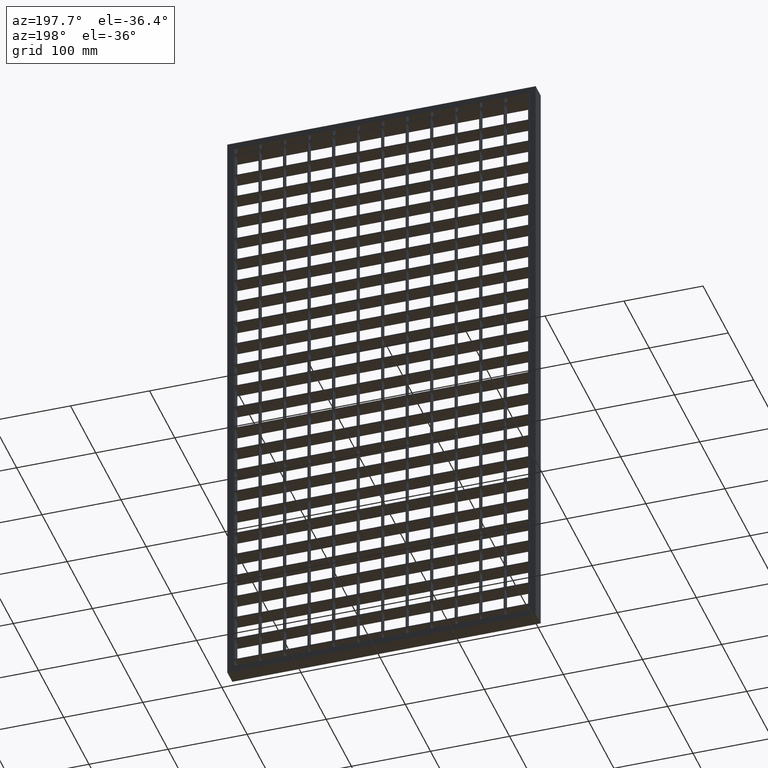
[diagram: clean part render]
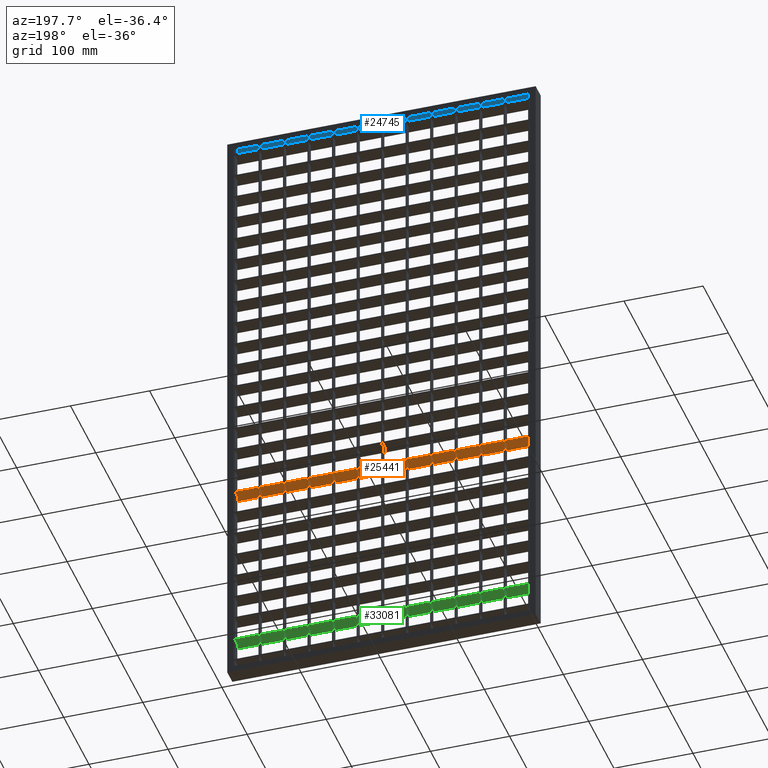
[diagram: same view with three faces highlighted in distinct colors, each labeled with its STEP entity id]
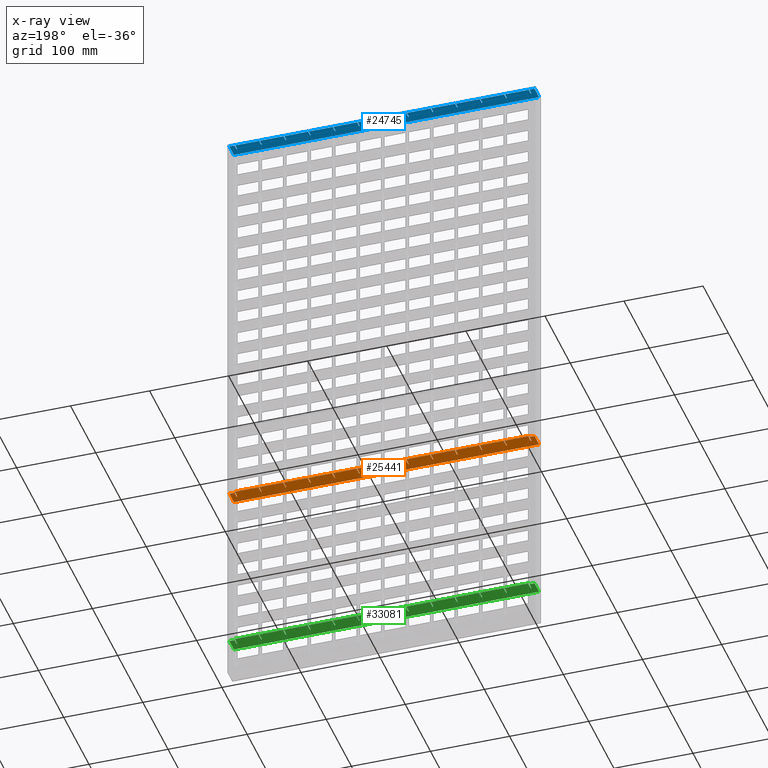
[diagram: x-ray of the same camera — body ghosted, the three highlighted faces saturated]
A machine part, auxiliary view with three faces highlighted in distinct colors.
The next image is the same camera in x-ray (body ghosted, the three faces saturated) — at least one of them is partly hidden behind the body in this view.
Their STEP definitions:

[orange] entity #25441 — the highlighted planar face has unit normal (0, 0, 1).
#48 = DIRECTION ( 'NONE',  ( 0.0000000000000000000, -1.000000000000000000, 0.0000000000000000000 ) ) ;
#71 = EDGE_CURVE ( 'NONE', #43495, #48874, #5362, .T. ) ;
#232 = CARTESIAN_POINT ( 'NONE',  ( 71.50000000000001400, 10.00000000000000200, -521.7499999999997700 ) ) ;
#266 = CARTESIAN_POINT ( 'NONE',  ( 382.0000000000002800, 10.00000000000000400, -521.7499999999998900 ) ) ;
#476 = LINE ( 'NONE', #37207, #14218 ) ;
#546 = DIRECTION ( 'NONE',  ( 0.0000000000000000000, -1.000000000000000000, 0.0000000000000000000 ) ) ;
#792 = LINE ( 'NONE', #11099, #41834 ) ;
#819 = CARTESIAN_POINT ( 'NONE',  ( 408.0561711201315200, 7.632783294297951200E-014, -521.7499999999997700 ) ) ;
#833 = ORIENTED_EDGE ( 'NONE', *, *, #42101, .T. ) ;
#947 = DIRECTION ( 'NONE',  ( 1.000000000000000000, 3.061616997868380700E-016, -0.0000000000000000000 ) ) ;
#949 = VERTEX_POINT ( 'NONE', #30416 ) ;
#966 = CARTESIAN_POINT ( 'NONE',  ( 70.50000000000000000, 10.00000000000002000, -521.7499999999997700 ) ) ;
#1165 = VECTOR ( 'NONE', #11774, 1000.000000000000000 ) ;
#1413 = VECTOR ( 'NONE', #13258, 1000.000000000000000 ) ;
#1476 = CARTESIAN_POINT ( 'NONE',  ( 408.0561711201315200, 10.00000000000012300, -521.7499999999997700 ) ) ;
#1567 = LINE ( 'NONE', #51334, #19608 ) ;
#1660 = LINE ( 'NONE', #21283, #48918 ) ;
#1673 = CARTESIAN_POINT ( 'NONE',  ( 39.50000000000000700, 7.001226303889211900E-016, -521.7499999999997700 ) ) ;
#1858 = EDGE_CURVE ( 'NONE', #5695, #18092, #46060, .T. ) ;
#1867 = VECTOR ( 'NONE', #36071, 1000.000000000000000 ) ;
#1905 = CARTESIAN_POINT ( 'NONE',  ( 318.5000000000001100, 10.00000000000000200, -521.7499999999998900 ) ) ;
#1991 = CARTESIAN_POINT ( 'NONE',  ( 164.5000000000000000, 1.006284330175759700E-015, -521.7499999999997700 ) ) ;
#2196 = LINE ( 'NONE', #38867, #44454 ) ;
#2298 = LINE ( 'NONE', #11799, #45215 ) ;
#2588 = CARTESIAN_POINT ( 'NONE',  ( 133.5000000000000000, -9.999999999999877400, -521.7499999999997700 ) ) ;
#2824 = VERTEX_POINT ( 'NONE', #8388 ) ;
#2851 = VERTEX_POINT ( 'NONE', #16398 ) ;
#3014 = EDGE_CURVE ( 'NONE', #26338, #17902, #40969, .T. ) ;
#3029 = VERTEX_POINT ( 'NONE', #17264 ) ;
#3041 = ORIENTED_EDGE ( 'NONE', *, *, #30598, .F. ) ;
#3050 = VERTEX_POINT ( 'NONE', #21444 ) ;
#3082 = CARTESIAN_POINT ( 'NONE',  ( 225.5000000000001100, 0.0000000000000000000, -521.7499999999997700 ) ) ;
#3092 = VERTEX_POINT ( 'NONE', #6107 ) ;
#3591 = VERTEX_POINT ( 'NONE', #18608 ) ;
#3615 = DIRECTION ( 'NONE',  ( -0.0000000000000000000, 1.000000000000000000, 0.0000000000000000000 ) ) ;
#3698 = CARTESIAN_POINT ( 'NONE',  ( 349.5000000000001700, 10.00000000000000200, -521.7499999999998900 ) ) ;
#3738 = CARTESIAN_POINT ( 'NONE',  ( 40.50000000000000700, 10.00000000000000200, -521.7499999999997700 ) ) ;
#3892 = LINE ( 'NONE', #28332, #13859 ) ;
#3942 = DIRECTION ( 'NONE',  ( -0.0000000000000000000, 1.000000000000000000, 0.0000000000000000000 ) ) ;
#3990 = CARTESIAN_POINT ( 'NONE',  ( 195.5000000000000000, 10.00000000000000200, -521.7499999999997700 ) ) ;
#4242 = CARTESIAN_POINT ( 'NONE',  ( 408.0561711201315200, 10.00000000000012300, -521.7499999999997700 ) ) ;
#4399 = CARTESIAN_POINT ( 'NONE',  ( 408.0561711201315200, 1.231653667943533000E-013, -521.7499999999997700 ) ) ;
#4421 = EDGE_CURVE ( 'NONE', #7602, #49210, #38949, .T. ) ;
#4432 = CARTESIAN_POINT ( 'NONE',  ( 408.0561711201315200, 1.144917494144692700E-013, -521.7499999999997700 ) ) ;
#4444 = LINE ( 'NONE', #45253, #10735 ) ;
#4483 = CARTESIAN_POINT ( 'NONE',  ( 408.0561711201315200, 10.00000000000012300, -521.7499999999997700 ) ) ;
#4532 = EDGE_CURVE ( 'NONE', #38721, #38531, #45807, .T. ) ;
#4675 = DIRECTION ( 'NONE',  ( 0.0000000000000000000, -1.000000000000000000, 0.0000000000000000000 ) ) ;
#4892 = CARTESIAN_POINT ( 'NONE',  ( 257.5000000000001100, 10.00000000000007600, -521.7499999999997700 ) ) ;
#5091 = ORIENTED_EDGE ( 'NONE', *, *, #45485, .F. ) ;
#5362 = LINE ( 'NONE', #51163, #20281 ) ;
#5481 = ORIENTED_EDGE ( 'NONE', *, *, #7026, .F. ) ;
#5522 = DIRECTION ( 'NONE',  ( 1.000000000000000000, 3.061616997868380700E-016, -0.0000000000000000000 ) ) ;
#5559 = CARTESIAN_POINT ( 'NONE',  ( 408.0561711201315200, 10.00000000000012300, -521.7499999999997700 ) ) ;
#5632 = VERTEX_POINT ( 'NONE', #16858 ) ;
#5695 = VERTEX_POINT ( 'NONE', #28284 ) ;
#5740 = DIRECTION ( 'NONE',  ( 0.0000000000000000000, -1.000000000000000000, 0.0000000000000000000 ) ) ;
#5875 = DIRECTION ( 'NONE',  ( -1.000000000000000000, 3.061616997868380700E-016, 0.0000000000000000000 ) ) ;
#6057 = VECTOR ( 'NONE', #7014, 1000.000000000000000 ) ;
#6107 = CARTESIAN_POINT ( 'NONE',  ( 133.5000000000000000, 10.00000000000000200, -521.7499999999997700 ) ) ;
#6189 = DIRECTION ( 'NONE',  ( -1.000000000000000000, -3.061616997868383100E-016, 0.0000000000000000000 ) ) ;
#6340 = LINE ( 'NONE', #43366, #29340 ) ;
#6582 = CARTESIAN_POINT ( 'NONE',  ( 388.0000000000000600, 8.000000000000001800, -521.7499999999998900 ) ) ;
#6753 = EDGE_CURVE ( 'NONE', #37059, #37531, #40591, .T. ) ;
#6828 = LINE ( 'NONE', #35457, #48500 ) ;
#6973 = CARTESIAN_POINT ( 'NONE',  ( 101.4999999999999900, -9.999999999999877400, -521.7499999999997700 ) ) ;
#7014 = DIRECTION ( 'NONE',  ( -0.0000000000000000000, 1.000000000000000000, 0.0000000000000000000 ) ) ;
#7026 = EDGE_CURVE ( 'NONE', #31857, #32474, #42416, .T. ) ;
#7067 = ORIENTED_EDGE ( 'NONE', *, *, #48137, .F. ) ;
#7184 = EDGE_CURVE ( 'NONE', #10729, #5695, #6340, .T. ) ;
#7187 = CARTESIAN_POINT ( 'NONE',  ( 380.5000000000000600, -9.999999999999877400, -521.7499999999997700 ) ) ;
#7397 = CARTESIAN_POINT ( 'NONE',  ( 408.0561711201315200, 10.00000000000012300, -521.7499999999997700 ) ) ;
#7578 = VERTEX_POINT ( 'NONE', #15153 ) ;
#7602 = VERTEX_POINT ( 'NONE', #7661 ) ;
#7606 = DIRECTION ( 'NONE',  ( -1.000000000000000000, 3.061616997868380700E-016, 0.0000000000000000000 ) ) ;
#7661 = CARTESIAN_POINT ( 'NONE',  ( 132.5000000000000000, 7.001226303889211900E-016, -521.7499999999997700 ) ) ;
#7877 = CARTESIAN_POINT ( 'NONE',  ( 9.500000000000008900, 10.00000000000000200, -521.7499999999997700 ) ) ;
#7927 = CARTESIAN_POINT ( 'NONE',  ( 8.500000000000007100, 7.001226303889211900E-016, -521.7499999999997700 ) ) ;
#8292 = CARTESIAN_POINT ( 'NONE',  ( 256.5000000000001100, -9.999999999999877400, -521.7499999999997700 ) ) ;
#8388 = CARTESIAN_POINT ( 'NONE',  ( 319.5000000000001100, 10.00000000000009600, -521.7499999999997700 ) ) ;
#8409 = CARTESIAN_POINT ( 'NONE',  ( 194.5000000000000000, -9.999999999999877400, -521.7499999999997700 ) ) ;
#8526 = VECTOR ( 'NONE', #5875, 1000.000000000000000 ) ;
#8679 = CARTESIAN_POINT ( 'NONE',  ( 7.999999999999996400, 8.000000000000001800, -521.7499999999997700 ) ) ;
#8794 = DIRECTION ( 'NONE',  ( 1.000000000000000000, 3.061616997868380700E-016, -0.0000000000000000000 ) ) ;
#9042 = LINE ( 'NONE', #1476, #46310 ) ;
#9071 = LINE ( 'NONE', #10747, #14668 ) ;
#9133 = LINE ( 'NONE', #49332, #17284 ) ;
#9241 = CARTESIAN_POINT ( 'NONE',  ( 195.5000000000000000, 1.006284330175759700E-015, -521.7499999999997700 ) ) ;
#9303 = CARTESIAN_POINT ( 'NONE',  ( 408.0561711201315200, 1.040834085586084300E-013, -521.7499999999997700 ) ) ;
#9529 = LINE ( 'NONE', #6973, #17011 ) ;
#9680 = DIRECTION ( 'NONE',  ( -1.000000000000000000, 3.061616997868380700E-016, 0.0000000000000000000 ) ) ;
#9738 = VERTEX_POINT ( 'NONE', #47893 ) ;
#9917 = DIRECTION ( 'NONE',  ( -0.0000000000000000000, 1.000000000000000000, 0.0000000000000000000 ) ) ;
#9958 = ORIENTED_EDGE ( 'NONE', *, *, #1858, .T. ) ;
#10020 = DIRECTION ( 'NONE',  ( -1.000000000000000000, 3.061616997868380700E-016, 0.0000000000000000000 ) ) ;
#10054 = EDGE_CURVE ( 'NONE', #26887, #32355, #30296, .T. ) ;
#10467 = VERTEX_POINT ( 'NONE', #28356 ) ;
#10544 = DIRECTION ( 'NONE',  ( -1.000000000000000000, -3.061616997868383100E-016, 0.0000000000000000000 ) ) ;
#10574 = CARTESIAN_POINT ( 'NONE',  ( 9.500000000000008900, 1.006284330175759700E-015, -521.7499999999997700 ) ) ;
#10584 = DIRECTION ( 'NONE',  ( 0.0000000000000000000, -1.000000000000000000, 0.0000000000000000000 ) ) ;
#10729 = VERTEX_POINT ( 'NONE', #34217 ) ;
#10734 = ORIENTED_EDGE ( 'NONE', *, *, #41175, .T. ) ;
#10735 = VECTOR ( 'NONE', #29599, 1000.000000000000000 ) ;
#10747 = CARTESIAN_POINT ( 'NONE',  ( 70.50000000000000000, -9.999999999999877400, -521.7499999999997700 ) ) ;
#10903 = EDGE_CURVE ( 'NONE', #28117, #22506, #46997, .T. ) ;
#10959 = DIRECTION ( 'NONE',  ( 0.0000000000000000000, 1.000000000000000000, -0.0000000000000000000 ) ) ;
#11099 = CARTESIAN_POINT ( 'NONE',  ( 408.0561711201315200, 10.00000000000012300, -521.7499999999997700 ) ) ;
#11176 = CARTESIAN_POINT ( 'NONE',  ( 7.999999999999996400, 8.000000000000001800, -521.7499999999997700 ) ) ;
#11197 = DIRECTION ( 'NONE',  ( -1.000000000000000000, -3.061616997868383100E-016, 0.0000000000000000000 ) ) ;
#11338 = VECTOR ( 'NONE', #35824, 1000.000000000000000 ) ;
#11371 = EDGE_CURVE ( 'NONE', #5632, #12950, #2196, .T. ) ;
#11451 = DIRECTION ( 'NONE',  ( -1.000000000000000000, -3.061616997868383100E-016, 0.0000000000000000000 ) ) ;
#11635 = VECTOR ( 'NONE', #5740, 1000.000000000000000 ) ;
#11768 = DIRECTION ( 'NONE',  ( -0.0000000000000000000, 1.000000000000000000, 0.0000000000000000000 ) ) ;
#11774 = DIRECTION ( 'NONE',  ( 0.0000000000000000000, -1.000000000000000000, 0.0000000000000000000 ) ) ;
#11799 = CARTESIAN_POINT ( 'NONE',  ( 408.0561711201315200, 10.00000000000012300, -521.7499999999997700 ) ) ;
#12108 = VERTEX_POINT ( 'NONE', #46812 ) ;
#12193 = CARTESIAN_POINT ( 'NONE',  ( 132.5000000000000000, -9.999999999999877400, -521.7499999999997700 ) ) ;
#12198 = EDGE_CURVE ( 'NONE', #36038, #25391, #42620, .T. ) ;
#12259 = VECTOR ( 'NONE', #29052, 1000.000000000000000 ) ;
#12266 = EDGE_CURVE ( 'NONE', #23702, #12108, #20639, .T. ) ;
#12490 = VERTEX_POINT ( 'NONE', #3082 ) ;
#12521 = CARTESIAN_POINT ( 'NONE',  ( 40.50000000000000700, 1.006284330175759700E-015, -521.7499999999997700 ) ) ;
#12946 = DIRECTION ( 'NONE',  ( -1.000000000000000000, -3.061616997868383100E-016, 0.0000000000000000000 ) ) ;
#12950 = VERTEX_POINT ( 'NONE', #1673 ) ;
#12970 = DIRECTION ( 'NONE',  ( -0.0000000000000000000, 1.000000000000000000, 0.0000000000000000000 ) ) ;
#13072 = CARTESIAN_POINT ( 'NONE',  ( 2.000000000000003600, 8.000000000000001800, -521.7499999999997700 ) ) ;
#13108 = VECTOR ( 'NONE', #10020, 1000.000000000000000 ) ;
#13175 = EDGE_CURVE ( 'NONE', #12108, #26338, #6828, .T. ) ;
#13191 = EDGE_CURVE ( 'NONE', #2824, #26752, #19895, .T. ) ;
#13258 = DIRECTION ( 'NONE',  ( -0.0000000000000000000, 1.000000000000000000, 0.0000000000000000000 ) ) ;
#13263 = VERTEX_POINT ( 'NONE', #35292 ) ;
#13330 = CARTESIAN_POINT ( 'NONE',  ( 102.5000000000000100, 10.00000000000000200, -521.7499999999997700 ) ) ;
#13373 = VECTOR ( 'NONE', #8794, 1000.000000000000000 ) ;
#13437 = CARTESIAN_POINT ( 'NONE',  ( 256.5000000000001100, 10.00000000000000200, -521.7499999999998900 ) ) ;
#13510 = VECTOR ( 'NONE', #45218, 1000.000000000000000 ) ;
#13608 = VERTEX_POINT ( 'NONE', #6582 ) ;
#13621 = EDGE_CURVE ( 'NONE', #13608, #7578, #26079, .T. ) ;
#13672 = FACE_OUTER_BOUND ( 'NONE', #47451, .T. ) ;
#13859 = VECTOR ( 'NONE', #546, 1000.000000000000000 ) ;
#14218 = VECTOR ( 'NONE', #12970, 1000.000000000000000 ) ;
#14410 = EDGE_CURVE ( 'NONE', #19671, #3591, #49622, .T. ) ;
#14562 = ORIENTED_EDGE ( 'NONE', *, *, #23707, .F. ) ;
#14668 = VECTOR ( 'NONE', #10584, 1000.000000000000000 ) ;
#14956 = CARTESIAN_POINT ( 'NONE',  ( 408.0561711201315200, -4.510281037539698400E-014, -521.7499999999997700 ) ) ;
#15152 = EDGE_CURVE ( 'NONE', #46882, #42861, #24113, .T. ) ;
#15153 = CARTESIAN_POINT ( 'NONE',  ( 388.0000000000000600, -10.00000000000000000, -521.7500000000000000 ) ) ;
#15180 = VERTEX_POINT ( 'NONE', #1905 ) ;
#15243 = CARTESIAN_POINT ( 'NONE',  ( 71.50000000000001400, -9.999999999999877400, -521.7499999999997700 ) ) ;
#15377 = VERTEX_POINT ( 'NONE', #232 ) ;
#15436 = EDGE_CURVE ( 'NONE', #32355, #43222, #45781, .T. ) ;
#15445 = EDGE_CURVE ( 'NONE', #17286, #2824, #1660, .T. ) ;
#15515 = EDGE_CURVE ( 'NONE', #47786, #36038, #47672, .T. ) ;
#15559 = DIRECTION ( 'NONE',  ( -1.000000000000000000, 3.061616997868380700E-016, 0.0000000000000000000 ) ) ;
#15706 = DIRECTION ( 'NONE',  ( 1.000000000000000000, 3.061616997868380700E-016, -0.0000000000000000000 ) ) ;
#15716 = VERTEX_POINT ( 'NONE', #34222 ) ;
#15956 = VECTOR ( 'NONE', #18947, 1000.000000000000000 ) ;
#16185 = DIRECTION ( 'NONE',  ( 0.0000000000000000000, -1.000000000000000000, 0.0000000000000000000 ) ) ;
#16398 = CARTESIAN_POINT ( 'NONE',  ( 318.5000000000001100, 0.0000000000000000000, -521.7499999999997700 ) ) ;
#16764 = CARTESIAN_POINT ( 'NONE',  ( 102.4999999999999900, -9.999999999999877400, -521.7499999999997700 ) ) ;
#16785 = ORIENTED_EDGE ( 'NONE', *, *, #25407, .F. ) ;
#16858 = CARTESIAN_POINT ( 'NONE',  ( 39.49999999999997900, 10.00000000000001100, -521.7499999999997700 ) ) ;
#16904 = CARTESIAN_POINT ( 'NONE',  ( 9.500000000000008900, -9.999999999999877400, -521.7499999999997700 ) ) ;
#16933 = CARTESIAN_POINT ( 'NONE',  ( 8.500000000000007100, -9.999999999999877400, -521.7499999999997700 ) ) ;
#16961 = DIRECTION ( 'NONE',  ( -1.000000000000000000, -3.061616997868383100E-016, 0.0000000000000000000 ) ) ;
#17011 = VECTOR ( 'NONE', #26618, 1000.000000000000000 ) ;
#17029 = VECTOR ( 'NONE', #16185, 1000.000000000000000 ) ;
#17057 = VERTEX_POINT ( 'NONE', #41955 ) ;
#17077 = VECTOR ( 'NONE', #10544, 1000.000000000000000 ) ;
#17085 = VECTOR ( 'NONE', #6189, 1000.000000000000000 ) ;
#17264 = CARTESIAN_POINT ( 'NONE',  ( 226.5000000000001400, 1.809118201648447200E-015, -521.7499999999997700 ) ) ;
#17284 = VECTOR ( 'NONE', #9917, 1000.000000000000000 ) ;
#17286 = VERTEX_POINT ( 'NONE', #3698 ) ;
#17544 = CARTESIAN_POINT ( 'NONE',  ( 408.0561711201315200, -2.602085213965210600E-014, -521.7499999999997700 ) ) ;
#17560 = ORIENTED_EDGE ( 'NONE', *, *, #23115, .F. ) ;
#17577 = ORIENTED_EDGE ( 'NONE', *, *, #6753, .F. ) ;
#17651 = ORIENTED_EDGE ( 'NONE', *, *, #44743, .F. ) ;
#17744 = CARTESIAN_POINT ( 'NONE',  ( 382.0000000000000600, 8.000000000000001800, -521.7499999999997700 ) ) ;
#17902 = VERTEX_POINT ( 'NONE', #3990 ) ;
#17910 = VERTEX_POINT ( 'NONE', #24003 ) ;
#18059 = VECTOR ( 'NONE', #21617, 1000.000000000000000 ) ;
#18092 = VERTEX_POINT ( 'NONE', #1991 ) ;
#18103 = EDGE_CURVE ( 'NONE', #3029, #12490, #31698, .T. ) ;
#18292 = ORIENTED_EDGE ( 'NONE', *, *, #4421, .T. ) ;
#18353 = EDGE_CURVE ( 'NONE', #23702, #44614, #27318, .T. ) ;
#18375 = VECTOR ( 'NONE', #3942, 1000.000000000000000 ) ;
#18404 = ORIENTED_EDGE ( 'NONE', *, *, #34115, .F. ) ;
#18547 = ORIENTED_EDGE ( 'NONE', *, *, #15152, .F. ) ;
#18574 = DIRECTION ( 'NONE',  ( 0.0000000000000000000, -1.000000000000000000, 0.0000000000000000000 ) ) ;
#18608 = CARTESIAN_POINT ( 'NONE',  ( 350.5000000000001700, 10.00000000000010700, -521.7499999999997700 ) ) ;
#18660 = CARTESIAN_POINT ( 'NONE',  ( 288.5000000000001100, 1.909051050609392200E-015, -521.7499999999997700 ) ) ;
#18682 = ORIENTED_EDGE ( 'NONE', *, *, #40876, .T. ) ;
#18760 = DIRECTION ( 'NONE',  ( -0.0000000000000000000, -1.000000000000000000, 0.0000000000000000000 ) ) ;
#18882 = VECTOR ( 'NONE', #18966, 1000.000000000000000 ) ;
#18947 = DIRECTION ( 'NONE',  ( -1.000000000000000000, 3.061616997868380700E-016, 0.0000000000000000000 ) ) ;
#18966 = DIRECTION ( 'NONE',  ( -1.000000000000000000, 0.0000000000000000000, 0.0000000000000000000 ) ) ;
#19546 = LINE ( 'NONE', #34253, #17077 ) ;
#19569 = ORIENTED_EDGE ( 'NONE', *, *, #12266, .T. ) ;
#19608 = VECTOR ( 'NONE', #11768, 1000.000000000000000 ) ;
#19671 = VERTEX_POINT ( 'NONE', #43605 ) ;
#19701 = CARTESIAN_POINT ( 'NONE',  ( 319.5000000000001100, -9.999999999999877400, -521.7499999999997700 ) ) ;
#19779 = ORIENTED_EDGE ( 'NONE', *, *, #28204, .F. ) ;
#19895 = LINE ( 'NONE', #19701, #47250 ) ;
#19910 = CARTESIAN_POINT ( 'NONE',  ( 408.0561711201315200, 10.00000000000012300, -521.7499999999997700 ) ) ;
#20281 = VECTOR ( 'NONE', #15559, 1000.000000000000000 ) ;
#20283 = ORIENTED_EDGE ( 'NONE', *, *, #13191, .F. ) ;
#20298 = ORIENTED_EDGE ( 'NONE', *, *, #34330, .T. ) ;
#20315 = ORIENTED_EDGE ( 'NONE', *, *, #15445, .F. ) ;
#20339 = ORIENTED_EDGE ( 'NONE', *, *, #14410, .F. ) ;
#20393 = VECTOR ( 'NONE', #30722, 1000.000000000000000 ) ;
#20471 = ORIENTED_EDGE ( 'NONE', *, *, #41014, .F. ) ;
#20474 = CARTESIAN_POINT ( 'NONE',  ( 101.5000000000000000, 7.001226303889211900E-016, -521.7499999999997700 ) ) ;
#20481 = LINE ( 'NONE', #30645, #1165 ) ;
#20639 = LINE ( 'NONE', #8409, #11338 ) ;
#20885 = ORIENTED_EDGE ( 'NONE', *, *, #37218, .F. ) ;
#21103 = AXIS2_PLACEMENT_3D ( 'NONE', #50468, #35315, #39328 ) ;
#21283 = CARTESIAN_POINT ( 'NONE',  ( 408.0561711201315200, 10.00000000000012300, -521.7499999999997700 ) ) ;
#21444 = CARTESIAN_POINT ( 'NONE',  ( 70.50000000000000000, 7.001226303889211900E-016, -521.7499999999997700 ) ) ;
#21452 = ORIENTED_EDGE ( 'NONE', *, *, #15436, .T. ) ;
#21617 = DIRECTION ( 'NONE',  ( -0.0000000000000000000, 1.000000000000000000, 0.0000000000000000000 ) ) ;
#21696 = CARTESIAN_POINT ( 'NONE',  ( 408.0561711201315200, 9.540979117872439000E-014, -521.7499999999997700 ) ) ;
#21720 = VECTOR ( 'NONE', #36356, 1000.000000000000000 ) ;
#21774 = CARTESIAN_POINT ( 'NONE',  ( 318.5000000000001100, -9.999999999999877400, -521.7499999999997700 ) ) ;
#21861 = EDGE_CURVE ( 'NONE', #12950, #48114, #49985, .T. ) ;
#22199 = ORIENTED_EDGE ( 'NONE', *, *, #4532, .F. ) ;
#22506 = VERTEX_POINT ( 'NONE', #8679 ) ;
#22651 = ORIENTED_EDGE ( 'NONE', *, *, #15515, .T. ) ;
#22806 = DIRECTION ( 'NONE',  ( -0.0000000000000000000, 1.000000000000000000, 0.0000000000000000000 ) ) ;
#22899 = ORIENTED_EDGE ( 'NONE', *, *, #29467, .F. ) ;
#23087 = ORIENTED_EDGE ( 'NONE', *, *, #44346, .T. ) ;
#23115 = EDGE_CURVE ( 'NONE', #5632, #40301, #25605, .T. ) ;
#23412 = DIRECTION ( 'NONE',  ( -1.000000000000000000, -3.061616997868383100E-016, 0.0000000000000000000 ) ) ;
#23445 = VECTOR ( 'NONE', #18760, 1000.000000000000000 ) ;
#23454 = EDGE_CURVE ( 'NONE', #38531, #19671, #38312, .T. ) ;
#23519 = VECTOR ( 'NONE', #36504, 1000.000000000000000 ) ;
#23702 = VERTEX_POINT ( 'NONE', #44842 ) ;
#23707 = EDGE_CURVE ( 'NONE', #39705, #38721, #3892, .T. ) ;
#23816 = EDGE_CURVE ( 'NONE', #25391, #40301, #33080, .T. ) ;
#23849 = VERTEX_POINT ( 'NONE', #13437 ) ;
#23972 = CARTESIAN_POINT ( 'NONE',  ( 319.5000000000001100, 1.091655737101436800E-015, -521.7499999999997700 ) ) ;
#24003 = CARTESIAN_POINT ( 'NONE',  ( 256.5000000000001100, 0.0000000000000000000, -521.7499999999997700 ) ) ;
#24113 = LINE ( 'NONE', #5559, #32127 ) ;
#24710 = CARTESIAN_POINT ( 'NONE',  ( 287.5000000000001100, 0.0000000000000000000, -521.7499999999997700 ) ) ;
#24957 = CARTESIAN_POINT ( 'NONE',  ( 349.5000000000001700, 0.0000000000000000000, -521.7499999999997700 ) ) ;
#24959 = VECTOR ( 'NONE', #48836, 1000.000000000000000 ) ;
#25070 = ORIENTED_EDGE ( 'NONE', *, *, #49227, .T. ) ;
#25391 = VERTEX_POINT ( 'NONE', #10574 ) ;
#25400 = CARTESIAN_POINT ( 'NONE',  ( 350.5000000000001700, -9.999999999999877400, -521.7499999999997700 ) ) ;
#25407 = EDGE_CURVE ( 'NONE', #29138, #3029, #20481, .T. ) ;
#25441 = ADVANCED_FACE ( 'NONE', ( #13672 ), #38459, .F. ) ;
#25587 = ORIENTED_EDGE ( 'NONE', *, *, #41831, .T. ) ;
#25605 = LINE ( 'NONE', #32707, #44210 ) ;
#25764 = VERTEX_POINT ( 'NONE', #33727 ) ;
#25909 = CARTESIAN_POINT ( 'NONE',  ( 349.5000000000001700, -9.999999999999877400, -521.7499999999997700 ) ) ;
#25957 = CARTESIAN_POINT ( 'NONE',  ( 380.5000000000000600, 0.0000000000000000000, -521.7499999999997700 ) ) ;
#26067 = EDGE_CURVE ( 'NONE', #10729, #3092, #46489, .T. ) ;
#26079 = LINE ( 'NONE', #38167, #39094 ) ;
#26083 = ORIENTED_EDGE ( 'NONE', *, *, #18353, .F. ) ;
#26284 = ORIENTED_EDGE ( 'NONE', *, *, #36661, .F. ) ;
#26310 = DIRECTION ( 'NONE',  ( -1.000000000000000000, -3.061616997868383100E-016, 0.0000000000000000000 ) ) ;
#26338 = VERTEX_POINT ( 'NONE', #9241 ) ;
#26618 = DIRECTION ( 'NONE',  ( 0.0000000000000000000, -1.000000000000000000, 0.0000000000000000000 ) ) ;
#26752 = VERTEX_POINT ( 'NONE', #23972 ) ;
#26887 = VERTEX_POINT ( 'NONE', #20474 ) ;
#26959 = CARTESIAN_POINT ( 'NONE',  ( 381.5000000000000600, 1.191588586062372900E-015, -521.7499999999997700 ) ) ;
#27035 = DIRECTION ( 'NONE',  ( -0.0000000000000000000, 1.000000000000000000, 0.0000000000000000000 ) ) ;
#27318 = LINE ( 'NONE', #4483, #1867 ) ;
#27510 = ORIENTED_EDGE ( 'NONE', *, *, #38153, .F. ) ;
#27793 = LINE ( 'NONE', #2588, #20393 ) ;
#28117 = VERTEX_POINT ( 'NONE', #34347 ) ;
#28204 = EDGE_CURVE ( 'NONE', #39887, #17286, #46403, .T. ) ;
#28284 = CARTESIAN_POINT ( 'NONE',  ( 163.5000000000000000, 7.001226303889211900E-016, -521.7499999999997700 ) ) ;
#28332 = CARTESIAN_POINT ( 'NONE',  ( 381.5000000000000600, -9.999999999999877400, -521.7499999999997700 ) ) ;
#28356 = CARTESIAN_POINT ( 'NONE',  ( 287.5000000000001100, 10.00000000000000200, -521.7499999999998900 ) ) ;
#28976 = ORIENTED_EDGE ( 'NONE', *, *, #21861, .T. ) ;
#29052 = DIRECTION ( 'NONE',  ( -0.0000000000000000000, 1.000000000000000000, 0.0000000000000000000 ) ) ;
#29138 = VERTEX_POINT ( 'NONE', #36700 ) ;
#29340 = VECTOR ( 'NONE', #31720, 1000.000000000000000 ) ;
#29442 = CARTESIAN_POINT ( 'NONE',  ( 408.0561711201315200, -5.377642775528102000E-014, -521.7499999999997700 ) ) ;
#29467 = EDGE_CURVE ( 'NONE', #13263, #15377, #19546, .T. ) ;
#29526 = ORIENTED_EDGE ( 'NONE', *, *, #36010, .F. ) ;
#29599 = DIRECTION ( 'NONE',  ( 0.0000000000000000000, -1.000000000000000000, 0.0000000000000000000 ) ) ;
#29623 = DIRECTION ( 'NONE',  ( 1.000000000000000000, 3.061616997868380700E-016, -0.0000000000000000000 ) ) ;
#29906 = ORIENTED_EDGE ( 'NONE', *, *, #7184, .T. ) ;
#30233 = VECTOR ( 'NONE', #33331, 1000.000000000000000 ) ;
#30296 = LINE ( 'NONE', #21696, #32758 ) ;
#30416 = CARTESIAN_POINT ( 'NONE',  ( 2.000000000000001800, -10.00000000000000200, -521.7499999999997700 ) ) ;
#30598 = EDGE_CURVE ( 'NONE', #25764, #43222, #792, .T. ) ;
#30614 = VECTOR ( 'NONE', #4675, 1000.000000000000000 ) ;
#30645 = CARTESIAN_POINT ( 'NONE',  ( 226.5000000000001100, -9.999999999999877400, -521.7499999999997700 ) ) ;
#30722 = DIRECTION ( 'NONE',  ( -0.0000000000000000000, 1.000000000000000000, 0.0000000000000000000 ) ) ;
#30729 = CARTESIAN_POINT ( 'NONE',  ( 2.000000000000003600, -10.00000000000000000, -521.7499999999997700 ) ) ;
#30885 = CARTESIAN_POINT ( 'NONE',  ( 133.5000000000000000, 1.006284330175759700E-015, -521.7499999999997700 ) ) ;
#30979 = VECTOR ( 'NONE', #27035, 1000.000000000000000 ) ;
#31053 = VERTEX_POINT ( 'NONE', #37548 ) ;
#31313 = ORIENTED_EDGE ( 'NONE', *, *, #3014, .T. ) ;
#31514 = EDGE_CURVE ( 'NONE', #22506, #33137, #35451, .T. ) ;
#31535 = LINE ( 'NONE', #14956, #15956 ) ;
#31546 = CARTESIAN_POINT ( 'NONE',  ( 381.5000000000000600, 10.00000000000011500, -521.7499999999997700 ) ) ;
#31596 = ORIENTED_EDGE ( 'NONE', *, *, #13175, .T. ) ;
#31688 = DIRECTION ( 'NONE',  ( -1.000000000000000000, -3.061616997868383100E-016, 0.0000000000000000000 ) ) ;
#31698 = LINE ( 'NONE', #29442, #13108 ) ;
#31720 = DIRECTION ( 'NONE',  ( 0.0000000000000000000, -1.000000000000000000, 0.0000000000000000000 ) ) ;
#31857 = VERTEX_POINT ( 'NONE', #42370 ) ;
#32127 = VECTOR ( 'NONE', #45500, 1000.000000000000000 ) ;
#32355 = VERTEX_POINT ( 'NONE', #50670 ) ;
#32474 = VERTEX_POINT ( 'NONE', #266 ) ;
#32565 = VECTOR ( 'NONE', #51503, 1000.000000000000000 ) ;
#32692 = LINE ( 'NONE', #25400, #11635 ) ;
#32707 = CARTESIAN_POINT ( 'NONE',  ( 408.0561711201315200, 10.00000000000012300, -521.7499999999997700 ) ) ;
#32758 = VECTOR ( 'NONE', #29623, 1000.000000000000000 ) ;
#33080 = LINE ( 'NONE', #16904, #1413 ) ;
#33097 = ORIENTED_EDGE ( 'NONE', *, *, #41193, .F. ) ;
#33137 = VERTEX_POINT ( 'NONE', #36720 ) ;
#33160 = DIRECTION ( 'NONE',  ( -0.0000000000000000000, 1.000000000000000000, 0.0000000000000000000 ) ) ;
#33331 = DIRECTION ( 'NONE',  ( -1.000000000000000000, -3.061616997868383100E-016, 0.0000000000000000000 ) ) ;
#33727 = CARTESIAN_POINT ( 'NONE',  ( 132.4999999999999400, 10.00000000000003900, -521.7499999999997700 ) ) ;
#34115 = EDGE_CURVE ( 'NONE', #13608, #31857, #44326, .T. ) ;
#34217 = CARTESIAN_POINT ( 'NONE',  ( 163.5000000000000000, 10.00000000000004800, -521.7499999999997700 ) ) ;
#34222 = CARTESIAN_POINT ( 'NONE',  ( 288.5000000000001100, 10.00000000000008700, -521.7499999999997700 ) ) ;
#34253 = CARTESIAN_POINT ( 'NONE',  ( 408.0561711201315200, 10.00000000000012300, -521.7499999999997700 ) ) ;
#34330 = EDGE_CURVE ( 'NONE', #25764, #7602, #41165, .T. ) ;
#34347 = CARTESIAN_POINT ( 'NONE',  ( 8.000000000000007100, 10.00000000000000000, -521.7499999999997700 ) ) ;
#34365 = ORIENTED_EDGE ( 'NONE', *, *, #71, .F. ) ;
#34597 = VECTOR ( 'NONE', #5522, 1000.000000000000000 ) ;
#34865 = CARTESIAN_POINT ( 'NONE',  ( 40.50000000000003600, -9.999999999999877400, -521.7499999999997700 ) ) ;
#35132 = ORIENTED_EDGE ( 'NONE', *, *, #50163, .F. ) ;
#35147 = EDGE_CURVE ( 'NONE', #15716, #43495, #4444, .T. ) ;
#35292 = CARTESIAN_POINT ( 'NONE',  ( 101.4999999999999900, 10.00000000000003000, -521.7499999999997700 ) ) ;
#35315 = DIRECTION ( 'NONE',  ( 0.0000000000000000000, 0.0000000000000000000, 1.000000000000000000 ) ) ;
#35451 = LINE ( 'NONE', #13072, #24959 ) ;
#35457 = CARTESIAN_POINT ( 'NONE',  ( 408.0561711201315200, 6.765421556309547700E-014, -521.7499999999997700 ) ) ;
#35764 = CARTESIAN_POINT ( 'NONE',  ( 257.5000000000001100, -9.999999999999877400, -521.7499999999997700 ) ) ;
#35793 = VECTOR ( 'NONE', #3615, 1000.000000000000000 ) ;
#35794 = ORIENTED_EDGE ( 'NONE', *, *, #11371, .T. ) ;
#35824 = DIRECTION ( 'NONE',  ( 0.0000000000000000000, -1.000000000000000000, 0.0000000000000000000 ) ) ;
#36010 = EDGE_CURVE ( 'NONE', #17057, #17902, #39127, .T. ) ;
#36038 = VERTEX_POINT ( 'NONE', #7927 ) ;
#36071 = DIRECTION ( 'NONE',  ( -1.000000000000000000, -3.061616997868383100E-016, 0.0000000000000000000 ) ) ;
#36219 = ORIENTED_EDGE ( 'NONE', *, *, #26067, .F. ) ;
#36356 = DIRECTION ( 'NONE',  ( -1.000000000000000000, -3.061616997868383100E-016, 0.0000000000000000000 ) ) ;
#36504 = DIRECTION ( 'NONE',  ( -1.000000000000000000, -3.061616997868383100E-016, 0.0000000000000000000 ) ) ;
#36564 = DIRECTION ( 'NONE',  ( 1.000000000000000000, 3.061616997868380700E-016, -0.0000000000000000000 ) ) ;
#36661 = EDGE_CURVE ( 'NONE', #15180, #15716, #50240, .T. ) ;
#36694 = VECTOR ( 'NONE', #36564, 1000.000000000000000 ) ;
#36700 = CARTESIAN_POINT ( 'NONE',  ( 226.5000000000001100, 10.00000000000006800, -521.7499999999997700 ) ) ;
#36720 = CARTESIAN_POINT ( 'NONE',  ( 2.000000000000003600, 8.000000000000001800, -521.7499999999997700 ) ) ;
#36854 = ORIENTED_EDGE ( 'NONE', *, *, #37137, .F. ) ;
#37059 = VERTEX_POINT ( 'NONE', #4892 ) ;
#37137 = EDGE_CURVE ( 'NONE', #2851, #15180, #45850, .T. ) ;
#37207 = CARTESIAN_POINT ( 'NONE',  ( 287.5000000000001100, -9.999999999999877400, -521.7499999999997700 ) ) ;
#37218 = EDGE_CURVE ( 'NONE', #33137, #949, #45800, .T. ) ;
#37431 = CARTESIAN_POINT ( 'NONE',  ( 408.0561711201315200, -6.938893903907228400E-015, -521.7499999999997700 ) ) ;
#37531 = VERTEX_POINT ( 'NONE', #44074 ) ;
#37548 = CARTESIAN_POINT ( 'NONE',  ( 71.50000000000001400, 1.006284330175759700E-015, -521.7499999999997700 ) ) ;
#37894 = EDGE_CURVE ( 'NONE', #46882, #3050, #9071, .T. ) ;
#38057 = VECTOR ( 'NONE', #10959, 1000.000000000000000 ) ;
#38153 = EDGE_CURVE ( 'NONE', #12490, #17057, #1567, .T. ) ;
#38167 = CARTESIAN_POINT ( 'NONE',  ( 388.0000000000000600, -9.999999999999877400, -521.7499999999997700 ) ) ;
#38312 = LINE ( 'NONE', #7187, #6057 ) ;
#38350 = LINE ( 'NONE', #34865, #35793 ) ;
#38392 = VECTOR ( 'NONE', #42269, 1000.000000000000000 ) ;
#38396 = LINE ( 'NONE', #9303, #41492 ) ;
#38459 = PLANE ( 'NONE',  #21103 ) ;
#38531 = VERTEX_POINT ( 'NONE', #25957 ) ;
#38664 = CARTESIAN_POINT ( 'NONE',  ( 164.5000000000000000, 10.00000000000000200, -521.7499999999997700 ) ) ;
#38721 = VERTEX_POINT ( 'NONE', #26959 ) ;
#38766 = LINE ( 'NONE', #41959, #17085 ) ;
#38867 = CARTESIAN_POINT ( 'NONE',  ( 39.50000000000003600, -9.999999999999877400, -521.7499999999997700 ) ) ;
#38949 = LINE ( 'NONE', #49306, #34597 ) ;
#39091 = CARTESIAN_POINT ( 'NONE',  ( 408.0561711201315200, 10.00000000000012300, -521.7499999999997700 ) ) ;
#39094 = VECTOR ( 'NONE', #18574, 1000.000000000000000 ) ;
#39127 = LINE ( 'NONE', #7397, #42874 ) ;
#39328 = DIRECTION ( 'NONE',  ( 1.000000000000000000, 0.0000000000000000000, -0.0000000000000000000 ) ) ;
#39705 = VERTEX_POINT ( 'NONE', #31546 ) ;
#39887 = VERTEX_POINT ( 'NONE', #24957 ) ;
#40301 = VERTEX_POINT ( 'NONE', #7877 ) ;
#40591 = LINE ( 'NONE', #35764, #17029 ) ;
#40695 = LINE ( 'NONE', #8292, #18375 ) ;
#40818 = CARTESIAN_POINT ( 'NONE',  ( 195.5000000000000000, -9.999999999999877400, -521.7499999999997700 ) ) ;
#40876 = EDGE_CURVE ( 'NONE', #31053, #15377, #50293, .T. ) ;
#40882 = ORIENTED_EDGE ( 'NONE', *, *, #35147, .F. ) ;
#40969 = LINE ( 'NONE', #40818, #18059 ) ;
#41014 = EDGE_CURVE ( 'NONE', #47786, #28117, #49042, .T. ) ;
#41165 = LINE ( 'NONE', #12193, #30614 ) ;
#41175 = EDGE_CURVE ( 'NONE', #3050, #31053, #38396, .T. ) ;
#41193 = EDGE_CURVE ( 'NONE', #48874, #10467, #476, .T. ) ;
#41321 = ORIENTED_EDGE ( 'NONE', *, *, #13621, .T. ) ;
#41441 = LINE ( 'NONE', #49011, #30233 ) ;
#41484 = VECTOR ( 'NONE', #11197, 1000.000000000000000 ) ;
#41492 = VECTOR ( 'NONE', #947, 1000.000000000000000 ) ;
#41831 = EDGE_CURVE ( 'NONE', #7578, #949, #41441, .T. ) ;
#41834 = VECTOR ( 'NONE', #23412, 1000.000000000000000 ) ;
#41840 = EDGE_CURVE ( 'NONE', #3591, #9738, #32692, .T. ) ;
#41955 = CARTESIAN_POINT ( 'NONE',  ( 225.5000000000001100, 10.00000000000000200, -521.7499999999997700 ) ) ;
#41959 = CARTESIAN_POINT ( 'NONE',  ( 408.0561711201315200, 10.00000000000012300, -521.7499999999997700 ) ) ;
#42101 = EDGE_CURVE ( 'NONE', #48114, #42861, #38350, .T. ) ;
#42198 = EDGE_CURVE ( 'NONE', #37531, #17910, #31535, .T. ) ;
#42269 = DIRECTION ( 'NONE',  ( -1.000000000000000000, -3.061616997868383100E-016, 0.0000000000000000000 ) ) ;
#42370 = CARTESIAN_POINT ( 'NONE',  ( 382.0000000000000600, 8.000000000000001800, -521.7499999999998900 ) ) ;
#42416 = LINE ( 'NONE', #17744, #38057 ) ;
#42620 = LINE ( 'NONE', #4399, #32565 ) ;
#42729 = CARTESIAN_POINT ( 'NONE',  ( 195.0000000000000000, 8.000000000000001800, -521.7499999999997700 ) ) ;
#42738 = DIRECTION ( 'NONE',  ( -0.0000000000000000000, -1.000000000000000000, 0.0000000000000000000 ) ) ;
#42861 = VERTEX_POINT ( 'NONE', #3738 ) ;
#42874 = VECTOR ( 'NONE', #31688, 1000.000000000000000 ) ;
#43031 = LINE ( 'NONE', #45789, #44283 ) ;
#43222 = VERTEX_POINT ( 'NONE', #13330 ) ;
#43245 = ORIENTED_EDGE ( 'NONE', *, *, #46590, .T. ) ;
#43326 = VECTOR ( 'NONE', #33160, 1000.000000000000000 ) ;
#43366 = CARTESIAN_POINT ( 'NONE',  ( 163.5000000000000000, -9.999999999999877400, -521.7499999999997700 ) ) ;
#43495 = VERTEX_POINT ( 'NONE', #18660 ) ;
#43605 = CARTESIAN_POINT ( 'NONE',  ( 380.5000000000000600, 10.00000000000000200, -521.7499999999998900 ) ) ;
#43762 = ORIENTED_EDGE ( 'NONE', *, *, #41840, .F. ) ;
#44074 = CARTESIAN_POINT ( 'NONE',  ( 257.5000000000000600, 9.917228881405222600E-016, -521.7499999999997700 ) ) ;
#44135 = LINE ( 'NONE', #17544, #48494 ) ;
#44210 = VECTOR ( 'NONE', #16961, 1000.000000000000000 ) ;
#44283 = VECTOR ( 'NONE', #9680, 1000.000000000000000 ) ;
#44326 = LINE ( 'NONE', #42729, #18882 ) ;
#44346 = EDGE_CURVE ( 'NONE', #18092, #44614, #9133, .T. ) ;
#44454 = VECTOR ( 'NONE', #45671, 1000.000000000000000 ) ;
#44614 = VERTEX_POINT ( 'NONE', #38664 ) ;
#44722 = ORIENTED_EDGE ( 'NONE', *, *, #23816, .T. ) ;
#44743 = EDGE_CURVE ( 'NONE', #23849, #29138, #2298, .T. ) ;
#44842 = CARTESIAN_POINT ( 'NONE',  ( 194.5000000000000000, 10.00000000000005700, -521.7499999999997700 ) ) ;
#45215 = VECTOR ( 'NONE', #11451, 1000.000000000000000 ) ;
#45218 = DIRECTION ( 'NONE',  ( 0.0000000000000000000, -1.000000000000000000, 0.0000000000000000000 ) ) ;
#45253 = CARTESIAN_POINT ( 'NONE',  ( 288.5000000000001100, -9.999999999999877400, -521.7499999999997700 ) ) ;
#45340 = ORIENTED_EDGE ( 'NONE', *, *, #18103, .F. ) ;
#45485 = EDGE_CURVE ( 'NONE', #17910, #23849, #40695, .T. ) ;
#45500 = DIRECTION ( 'NONE',  ( -1.000000000000000000, -3.061616997868383100E-016, 0.0000000000000000000 ) ) ;
#45671 = DIRECTION ( 'NONE',  ( 0.0000000000000000000, -1.000000000000000000, 0.0000000000000000000 ) ) ;
#45769 = VECTOR ( 'NONE', #42738, 1000.000000000000000 ) ;
#45781 = LINE ( 'NONE', #16764, #12259 ) ;
#45789 = CARTESIAN_POINT ( 'NONE',  ( 408.0561711201315200, -1.561251128379126400E-014, -521.7499999999997700 ) ) ;
#45800 = LINE ( 'NONE', #30729, #23445 ) ;
#45807 = LINE ( 'NONE', #37431, #8526 ) ;
#45850 = LINE ( 'NONE', #21774, #43326 ) ;
#45912 = EDGE_CURVE ( 'NONE', #32474, #39705, #38766, .T. ) ;
#45916 = ORIENTED_EDGE ( 'NONE', *, *, #23454, .F. ) ;
#46060 = LINE ( 'NONE', #819, #36694 ) ;
#46097 = CARTESIAN_POINT ( 'NONE',  ( 408.0561711201315200, 10.00000000000012300, -521.7499999999997700 ) ) ;
#46310 = VECTOR ( 'NONE', #26310, 1000.000000000000000 ) ;
#46403 = LINE ( 'NONE', #25909, #50164 ) ;
#46489 = LINE ( 'NONE', #39091, #41484 ) ;
#46590 = EDGE_CURVE ( 'NONE', #13263, #26887, #9529, .T. ) ;
#46812 = CARTESIAN_POINT ( 'NONE',  ( 194.5000000000000000, 7.001226303889211900E-016, -521.7499999999997700 ) ) ;
#46882 = VERTEX_POINT ( 'NONE', #966 ) ;
#46883 = ORIENTED_EDGE ( 'NONE', *, *, #42198, .F. ) ;
#46910 = EDGE_CURVE ( 'NONE', #9738, #39887, #43031, .T. ) ;
#46997 = LINE ( 'NONE', #11176, #45769 ) ;
#47250 = VECTOR ( 'NONE', #48, 1000.000000000000000 ) ;
#47259 = ORIENTED_EDGE ( 'NONE', *, *, #45912, .F. ) ;
#47309 = ORIENTED_EDGE ( 'NONE', *, *, #10903, .F. ) ;
#47451 = EDGE_LOOP ( 'NONE', ( #14562, #47259, #5481, #18404, #41321, #25587, #20885, #51166, #47309, #20471, #22651, #48217, #44722, #17560, #35794, #28976, #833, #18547, #50502, #10734, #18682, #22899, #43245, #51099, #21452, #3041, #20298, #18292, #25070, #36219, #29906, #9958, #23087, #26083, #19569, #31596, #31313, #29526, #27510, #45340, #16785, #17651, #5091, #46883, #17577, #35132, #33097, #34365, #40882, #26284, #36854, #7067, #20283, #20315, #19779, #49902, #43762, #20339, #45916, #22199 ) ) ;
#47672 = LINE ( 'NONE', #16933, #13510 ) ;
#47786 = VERTEX_POINT ( 'NONE', #50239 ) ;
#47893 = CARTESIAN_POINT ( 'NONE',  ( 350.5000000000001700, 2.008983899570291500E-015, -521.7499999999997700 ) ) ;
#48114 = VERTEX_POINT ( 'NONE', #12521 ) ;
#48137 = EDGE_CURVE ( 'NONE', #26752, #2851, #44135, .T. ) ;
#48217 = ORIENTED_EDGE ( 'NONE', *, *, #12198, .T. ) ;
#48494 = VECTOR ( 'NONE', #7606, 1000.000000000000000 ) ;
#48500 = VECTOR ( 'NONE', #15706, 1000.000000000000000 ) ;
#48836 = DIRECTION ( 'NONE',  ( -1.000000000000000000, 0.0000000000000000000, 0.0000000000000000000 ) ) ;
#48874 = VERTEX_POINT ( 'NONE', #24710 ) ;
#48918 = VECTOR ( 'NONE', #12946, 1000.000000000000000 ) ;
#49011 = CARTESIAN_POINT ( 'NONE',  ( 408.0561711201315200, -9.999999999999877400, -521.7499999999997700 ) ) ;
#49042 = LINE ( 'NONE', #19910, #21720 ) ;
#49210 = VERTEX_POINT ( 'NONE', #30885 ) ;
#49227 = EDGE_CURVE ( 'NONE', #49210, #3092, #27793, .T. ) ;
#49306 = CARTESIAN_POINT ( 'NONE',  ( 408.0561711201315200, 8.500145032286354800E-014, -521.7499999999997700 ) ) ;
#49332 = CARTESIAN_POINT ( 'NONE',  ( 164.5000000000000000, -9.999999999999877400, -521.7499999999997700 ) ) ;
#49622 = LINE ( 'NONE', #4242, #23519 ) ;
#49902 = ORIENTED_EDGE ( 'NONE', *, *, #46910, .F. ) ;
#49985 = LINE ( 'NONE', #4432, #13373 ) ;
#50163 = EDGE_CURVE ( 'NONE', #10467, #37059, #9042, .T. ) ;
#50164 = VECTOR ( 'NONE', #22806, 1000.000000000000000 ) ;
#50239 = CARTESIAN_POINT ( 'NONE',  ( 8.500000000000007100, 10.00000000000000000, -521.7499999999997700 ) ) ;
#50240 = LINE ( 'NONE', #46097, #38392 ) ;
#50293 = LINE ( 'NONE', #15243, #30979 ) ;
#50468 = CARTESIAN_POINT ( 'NONE',  ( 408.0561711201315200, -9.999999999999877400, -521.7499999999997700 ) ) ;
#50502 = ORIENTED_EDGE ( 'NONE', *, *, #37894, .T. ) ;
#50670 = CARTESIAN_POINT ( 'NONE',  ( 102.5000000000000100, 1.006284330175759700E-015, -521.7499999999997700 ) ) ;
#51099 = ORIENTED_EDGE ( 'NONE', *, *, #10054, .T. ) ;
#51163 = CARTESIAN_POINT ( 'NONE',  ( 408.0561711201315200, -3.469446951953614200E-014, -521.7499999999997700 ) ) ;
#51166 = ORIENTED_EDGE ( 'NONE', *, *, #31514, .F. ) ;
#51334 = CARTESIAN_POINT ( 'NONE',  ( 225.5000000000001100, -9.999999999999877400, -521.7499999999997700 ) ) ;
#51503 = DIRECTION ( 'NONE',  ( 1.000000000000000000, 3.061616997868380700E-016, -0.0000000000000000000 ) ) ;

[blue] entity #24745 — the highlighted planar face has unit normal (0, -0, 1).
#52 = LINE ( 'NONE', #29573, #13111 ) ;
#181 = LINE ( 'NONE', #4412, #23862 ) ;
#225 = VECTOR ( 'NONE', #1998, 1000.000000000000000 ) ;
#667 = ORIENTED_EDGE ( 'NONE', *, *, #2859, .T. ) ;
#756 = CARTESIAN_POINT ( 'NONE',  ( 388.0000000000001100, -3.816391647148975600E-014, -2.000000000000112800 ) ) ;
#759 = DIRECTION ( 'NONE',  ( 0.0000000000000000000, -1.000000000000000000, 0.0000000000000000000 ) ) ;
#1086 = VECTOR ( 'NONE', #49051, 1000.000000000000000 ) ;
#1088 = LINE ( 'NONE', #9379, #28990 ) ;
#1205 = LINE ( 'NONE', #32408, #27313 ) ;
#1207 = ORIENTED_EDGE ( 'NONE', *, *, #12544, .F. ) ;
#1265 = DIRECTION ( 'NONE',  ( 0.0000000000000000000, 1.000000000000000000, 0.0000000000000000000 ) ) ;
#1312 = VERTEX_POINT ( 'NONE', #5032 ) ;
#1332 = CARTESIAN_POINT ( 'NONE',  ( 163.5000000000000000, 8.000000000000001800, -2.000000000000078200 ) ) ;
#1371 = CARTESIAN_POINT ( 'NONE',  ( 194.5000000000000000, 8.000000000000001800, -2.000000000000054200 ) ) ;
#1607 = VECTOR ( 'NONE', #25361, 1000.000000000000000 ) ;
#1615 = CARTESIAN_POINT ( 'NONE',  ( 388.0000000000001100, 6.071532165918824800E-014, -2.000000000000112800 ) ) ;
#1854 = DIRECTION ( 'NONE',  ( -1.000000000000000000, 0.0000000000000000000, 3.140119997813727700E-017 ) ) ;
#1972 = VECTOR ( 'NONE', #45145, 1000.000000000000000 ) ;
#1998 = DIRECTION ( 'NONE',  ( 0.0000000000000000000, -1.000000000000000000, -0.0000000000000000000 ) ) ;
#2147 = ORIENTED_EDGE ( 'NONE', *, *, #30916, .T. ) ;
#2414 = CARTESIAN_POINT ( 'NONE',  ( 350.5000000000001700, 1.072722886145586800E-015, -2.000000000000111500 ) ) ;
#2606 = VERTEX_POINT ( 'NONE', #17977 ) ;
#2848 = ORIENTED_EDGE ( 'NONE', *, *, #15061, .F. ) ;
#2859 = EDGE_CURVE ( 'NONE', #6522, #25069, #39779, .T. ) ;
#3234 = ORIENTED_EDGE ( 'NONE', *, *, #42054, .F. ) ;
#3325 = VERTEX_POINT ( 'NONE', #23991 ) ;
#3427 = LINE ( 'NONE', #13909, #17778 ) ;
#3754 = CARTESIAN_POINT ( 'NONE',  ( 388.0000000000001100, 8.000000000000001800, -2.000000000000057300 ) ) ;
#3825 = EDGE_CURVE ( 'NONE', #26937, #11962, #22332, .T. ) ;
#4022 = EDGE_CURVE ( 'NONE', #28642, #31288, #47141, .T. ) ;
#4268 = DIRECTION ( 'NONE',  ( 0.0000000000000000000, 1.000000000000000000, 0.0000000000000000000 ) ) ;
#4365 = CARTESIAN_POINT ( 'NONE',  ( 2.000000000000003600, 8.000000000000001800, -1.999999999999890800 ) ) ;
#4388 = CARTESIAN_POINT ( 'NONE',  ( 132.5000000000000000, 7.001226303889211900E-016, -2.000000000000112800 ) ) ;
#4412 = CARTESIAN_POINT ( 'NONE',  ( 132.5000000000000000, -10.00000000000000000, -2.000000000000104800 ) ) ;
#4818 = EDGE_CURVE ( 'NONE', #23804, #5907, #26523, .T. ) ;
#4887 = LINE ( 'NONE', #31515, #47106 ) ;
#4889 = DIRECTION ( 'NONE',  ( 0.0000000000000000000, -1.000000000000000000, -0.0000000000000000000 ) ) ;
#4958 = CARTESIAN_POINT ( 'NONE',  ( 40.49999999999997900, -10.00000000000000000, -2.000000000000102100 ) ) ;
#4980 = VECTOR ( 'NONE', #17113, 1000.000000000000000 ) ;
#5032 = CARTESIAN_POINT ( 'NONE',  ( 164.5000000000000000, 8.000000000000001800, -2.000000000000078200 ) ) ;
#5110 = CARTESIAN_POINT ( 'NONE',  ( 8.500000000000007100, -10.00000000000000000, -2.000000000000101300 ) ) ;
#5141 = VECTOR ( 'NONE', #24770, 1000.000000000000000 ) ;
#5179 = VECTOR ( 'NONE', #20271, 1000.000000000000000 ) ;
#5435 = VECTOR ( 'NONE', #44466, 1000.000000000000000 ) ;
#5525 = CARTESIAN_POINT ( 'NONE',  ( 133.5000000000000000, 8.000000000000001800, -2.000000000000077300 ) ) ;
#5616 = PLANE ( 'NONE',  #15758 ) ;
#5639 = LINE ( 'NONE', #41482, #11910 ) ;
#5720 = LINE ( 'NONE', #5884, #1972 ) ;
#5770 = VECTOR ( 'NONE', #20282, 1000.000000000000000 ) ;
#5880 = CARTESIAN_POINT ( 'NONE',  ( 225.5000000000001100, 8.000000000000001800, -2.000000000000052000 ) ) ;
#5884 = CARTESIAN_POINT ( 'NONE',  ( 102.5000000000000300, -10.00000000000000000, -2.000000000000103500 ) ) ;
#5902 = ORIENTED_EDGE ( 'NONE', *, *, #37148, .F. ) ;
#5907 = VERTEX_POINT ( 'NONE', #13898 ) ;
#5949 = VERTEX_POINT ( 'NONE', #5880 ) ;
#5991 = VECTOR ( 'NONE', #36832, 1000.000000000000000 ) ;
#6062 = DIRECTION ( 'NONE',  ( 0.0000000000000000000, 1.000000000000000000, 0.0000000000000000000 ) ) ;
#6175 = EDGE_CURVE ( 'NONE', #9546, #2606, #10213, .T. ) ;
#6260 = DIRECTION ( 'NONE',  ( -1.000000000000000000, 0.0000000000000000000, 3.140119997813727700E-017 ) ) ;
#6323 = CARTESIAN_POINT ( 'NONE',  ( 40.49999999999997900, 8.000000000000001800, -2.000000000000074200 ) ) ;
#6371 = CARTESIAN_POINT ( 'NONE',  ( 2.000000000000003600, -4.000000000000000000, -1.999999999999890800 ) ) ;
#6427 = CARTESIAN_POINT ( 'NONE',  ( 388.0000000000001100, 8.000000000000001800, -2.000000000000057300 ) ) ;
#6432 = DIRECTION ( 'NONE',  ( 0.0000000000000000000, 1.000000000000000000, 0.0000000000000000000 ) ) ;
#6433 = DIRECTION ( 'NONE',  ( 1.000000000000000000, 3.061616997868380700E-016, -3.140119997813727700E-017 ) ) ;
#6522 = VERTEX_POINT ( 'NONE', #38912 ) ;
#6726 = EDGE_CURVE ( 'NONE', #3325, #50473, #8943, .T. ) ;
#7131 = VERTEX_POINT ( 'NONE', #2414 ) ;
#7201 = VECTOR ( 'NONE', #24099, 1000.000000000000000 ) ;
#7336 = DIRECTION ( 'NONE',  ( -1.000000000000000000, 0.0000000000000000000, 3.140119997813727700E-017 ) ) ;
#7430 = CARTESIAN_POINT ( 'NONE',  ( 380.5000000000000600, -10.00000000000000000, -2.000000000000112400 ) ) ;
#7465 = LINE ( 'NONE', #44232, #37883 ) ;
#7756 = ORIENTED_EDGE ( 'NONE', *, *, #14518, .F. ) ;
#7952 = CARTESIAN_POINT ( 'NONE',  ( 194.5000000000000000, -10.00000000000000000, -2.000000000000106600 ) ) ;
#8004 = ORIENTED_EDGE ( 'NONE', *, *, #48199, .F. ) ;
#8017 = EDGE_CURVE ( 'NONE', #31288, #42830, #5639, .T. ) ;
#8094 = LINE ( 'NONE', #47326, #49132 ) ;
#8259 = CARTESIAN_POINT ( 'NONE',  ( 40.50000000000000700, 1.006284330175759700E-015, -2.000000000000112800 ) ) ;
#8403 = VERTEX_POINT ( 'NONE', #8472 ) ;
#8417 = EDGE_CURVE ( 'NONE', #20415, #46572, #7465, .T. ) ;
#8472 = CARTESIAN_POINT ( 'NONE',  ( 71.50000000000001400, 1.006284330175759700E-015, -2.000000000000112800 ) ) ;
#8534 = LINE ( 'NONE', #1615, #5991 ) ;
#8539 = VERTEX_POINT ( 'NONE', #46139 ) ;
#8774 = CARTESIAN_POINT ( 'NONE',  ( 380.5000000000000600, 0.0000000000000000000, -2.000000000000112400 ) ) ;
#8943 = LINE ( 'NONE', #16356, #22047 ) ;
#9028 = EDGE_CURVE ( 'NONE', #42830, #26998, #28588, .T. ) ;
#9114 = CARTESIAN_POINT ( 'NONE',  ( 257.5000000000001700, -10.00000000000000000, -2.000000000000108800 ) ) ;
#9171 = EDGE_CURVE ( 'NONE', #14697, #1312, #14925, .T. ) ;
#9379 = CARTESIAN_POINT ( 'NONE',  ( 133.5000000000000000, -10.00000000000000000, -2.000000000000104800 ) ) ;
#9448 = DIRECTION ( 'NONE',  ( -1.000000000000000000, 3.061616997868380700E-016, 3.140119997813727700E-017 ) ) ;
#9546 = VERTEX_POINT ( 'NONE', #34675 ) ;
#9547 = DIRECTION ( 'NONE',  ( -1.000000000000000000, 3.061616997868380700E-016, 3.140119997813727700E-017 ) ) ;
#9819 = VECTOR ( 'NONE', #6260, 1000.000000000000000 ) ;
#9949 = VECTOR ( 'NONE', #24769, 1000.000000000000000 ) ;
#10213 = LINE ( 'NONE', #11619, #5179 ) ;
#10307 = CARTESIAN_POINT ( 'NONE',  ( 71.50000000000001400, -10.00000000000000000, -2.000000000000103000 ) ) ;
#10389 = VERTEX_POINT ( 'NONE', #4388 ) ;
#10435 = ORIENTED_EDGE ( 'NONE', *, *, #33882, .T. ) ;
#10473 = CARTESIAN_POINT ( 'NONE',  ( 318.5000000000001100, -10.00000000000000000, -2.000000000000110600 ) ) ;
#10617 = EDGE_CURVE ( 'NONE', #19118, #9546, #8534, .T. ) ;
#10872 = ORIENTED_EDGE ( 'NONE', *, *, #6175, .T. ) ;
#11219 = EDGE_CURVE ( 'NONE', #47478, #23024, #3427, .T. ) ;
#11330 = VECTOR ( 'NONE', #6062, 1000.000000000000000 ) ;
#11394 = CARTESIAN_POINT ( 'NONE',  ( 39.49999999999997900, -10.00000000000000000, -2.000000000000102100 ) ) ;
#11619 = CARTESIAN_POINT ( 'NONE',  ( 195.5000000000000000, -10.00000000000000000, -2.000000000000106600 ) ) ;
#11805 = DIRECTION ( 'NONE',  ( 0.0000000000000000000, -1.000000000000000000, 0.0000000000000000000 ) ) ;
#11910 = VECTOR ( 'NONE', #18748, 1000.000000000000000 ) ;
#11926 = ORIENTED_EDGE ( 'NONE', *, *, #17782, .T. ) ;
#11962 = VERTEX_POINT ( 'NONE', #46480 ) ;
#11963 = VERTEX_POINT ( 'NONE', #22569 ) ;
#12040 = VERTEX_POINT ( 'NONE', #27338 ) ;
#12233 = ORIENTED_EDGE ( 'NONE', *, *, #16934, .F. ) ;
#12428 = VECTOR ( 'NONE', #32992, 1000.000000000000000 ) ;
#12487 = EDGE_CURVE ( 'NONE', #22652, #46732, #25628, .T. ) ;
#12544 = EDGE_CURVE ( 'NONE', #19259, #17294, #47941, .T. ) ;
#12579 = VECTOR ( 'NONE', #34842, 1000.000000000000000 ) ;
#12730 = ORIENTED_EDGE ( 'NONE', *, *, #30482, .T. ) ;
#13111 = VECTOR ( 'NONE', #9448, 1000.000000000000000 ) ;
#13213 = CARTESIAN_POINT ( 'NONE',  ( 388.0000000000001100, 8.000000000000001800, -2.000000000000057300 ) ) ;
#13333 = DIRECTION ( 'NONE',  ( -1.000000000000000000, 0.0000000000000000000, 3.140119997813727700E-017 ) ) ;
#13403 = VECTOR ( 'NONE', #20953, 1000.000000000000000 ) ;
#13435 = EDGE_CURVE ( 'NONE', #5907, #5949, #16162, .T. ) ;
#13480 = VERTEX_POINT ( 'NONE', #18235 ) ;
#13846 = LINE ( 'NONE', #46265, #27453 ) ;
#13898 = CARTESIAN_POINT ( 'NONE',  ( 225.5000000000001400, 0.0000000000000000000, -2.000000000000107500 ) ) ;
#13909 = CARTESIAN_POINT ( 'NONE',  ( 388.0000000000001100, 1.075528555105620400E-013, -2.000000000000112800 ) ) ;
#13978 = CARTESIAN_POINT ( 'NONE',  ( 388.0000000000001100, -10.00000000000000000, -2.000000000000112800 ) ) ;
#14187 = LINE ( 'NONE', #21288, #1086 ) ;
#14214 = VERTEX_POINT ( 'NONE', #18670 ) ;
#14249 = EDGE_CURVE ( 'NONE', #47185, #7131, #4887, .T. ) ;
#14357 = CARTESIAN_POINT ( 'NONE',  ( 388.0000000000001100, 8.000000000000001800, -2.000000000000057300 ) ) ;
#14439 = CARTESIAN_POINT ( 'NONE',  ( 388.0000000000001100, 7.979727989493312600E-014, -2.000000000000112800 ) ) ;
#14454 = CARTESIAN_POINT ( 'NONE',  ( 287.5000000000001100, -10.00000000000000000, -2.000000000000109700 ) ) ;
#14518 = EDGE_CURVE ( 'NONE', #24874, #19259, #14187, .T. ) ;
#14545 = EDGE_CURVE ( 'NONE', #11962, #14697, #26581, .T. ) ;
#14548 = ORIENTED_EDGE ( 'NONE', *, *, #14545, .T. ) ;
#14697 = VERTEX_POINT ( 'NONE', #41733 ) ;
#14925 = LINE ( 'NONE', #41006, #47204 ) ;
#15061 = EDGE_CURVE ( 'NONE', #22652, #34099, #50220, .T. ) ;
#15164 = LINE ( 'NONE', #18176, #225 ) ;
#15684 = EDGE_CURVE ( 'NONE', #40079, #23804, #40157, .T. ) ;
#15758 = AXIS2_PLACEMENT_3D ( 'NONE', #13978, #37880, #45393 ) ;
#15899 = ORIENTED_EDGE ( 'NONE', *, *, #44397, .T. ) ;
#15962 = VECTOR ( 'NONE', #49782, 1000.000000000000000 ) ;
#16162 = LINE ( 'NONE', #41304, #18016 ) ;
#16355 = LINE ( 'NONE', #3754, #5770 ) ;
#16356 = CARTESIAN_POINT ( 'NONE',  ( 388.0000000000001100, 8.000000000000001800, -2.000000000000057300 ) ) ;
#16588 = ORIENTED_EDGE ( 'NONE', *, *, #10617, .T. ) ;
#16789 = ORIENTED_EDGE ( 'NONE', *, *, #46719, .T. ) ;
#16880 = CARTESIAN_POINT ( 'NONE',  ( 388.0000000000001100, -10.00000000000000000, -2.000000000000112800 ) ) ;
#16888 = ORIENTED_EDGE ( 'NONE', *, *, #4022, .F. ) ;
#16912 = EDGE_CURVE ( 'NONE', #18236, #42298, #15164, .T. ) ;
#16934 = EDGE_CURVE ( 'NONE', #34099, #35585, #24495, .T. ) ;
#17113 = DIRECTION ( 'NONE',  ( 0.0000000000000000000, -1.000000000000000000, -0.0000000000000000000 ) ) ;
#17115 = CARTESIAN_POINT ( 'NONE',  ( 388.0000000000001100, 6.938893903907228400E-014, -2.000000000000112800 ) ) ;
#17148 = EDGE_CURVE ( 'NONE', #30228, #47478, #25088, .T. ) ;
#17294 = VERTEX_POINT ( 'NONE', #31993 ) ;
#17417 = ORIENTED_EDGE ( 'NONE', *, *, #9028, .F. ) ;
#17778 = VECTOR ( 'NONE', #45491, 1000.000000000000000 ) ;
#17780 = DIRECTION ( 'NONE',  ( 1.000000000000000000, 3.061616997868380700E-016, -3.140119997813727700E-017 ) ) ;
#17782 = EDGE_CURVE ( 'NONE', #13480, #36255, #23954, .T. ) ;
#17928 = CARTESIAN_POINT ( 'NONE',  ( 388.0000000000001100, 8.000000000000001800, -2.000000000000057300 ) ) ;
#17963 = VECTOR ( 'NONE', #24729, 1000.000000000000000 ) ;
#17977 = CARTESIAN_POINT ( 'NONE',  ( 195.5000000000000000, 8.000000000000001800, -2.000000000000054200 ) ) ;
#17998 = CARTESIAN_POINT ( 'NONE',  ( 318.5000000000001100, 0.0000000000000000000, -2.000000000000110600 ) ) ;
#18008 = DIRECTION ( 'NONE',  ( -1.000000000000000000, 0.0000000000000000000, 3.140119997813727700E-017 ) ) ;
#18016 = VECTOR ( 'NONE', #49512, 1000.000000000000000 ) ;
#18050 = CARTESIAN_POINT ( 'NONE',  ( 388.0000000000001100, -10.00000000000000000, -2.000000000000112800 ) ) ;
#18152 = EDGE_CURVE ( 'NONE', #42298, #28642, #8094, .T. ) ;
#18176 = CARTESIAN_POINT ( 'NONE',  ( 288.5000000000001100, -10.00000000000000000, -2.000000000000109700 ) ) ;
#18235 = CARTESIAN_POINT ( 'NONE',  ( 9.500000000000008900, 1.006284330175759700E-015, -2.000000000000112800 ) ) ;
#18236 = VERTEX_POINT ( 'NONE', #39980 ) ;
#18556 = DIRECTION ( 'NONE',  ( -1.000000000000000000, 0.0000000000000000000, 3.140119997813727700E-017 ) ) ;
#18670 = CARTESIAN_POINT ( 'NONE',  ( 133.5000000000000000, 1.006284330175759700E-015, -2.000000000000112800 ) ) ;
#18719 = CARTESIAN_POINT ( 'NONE',  ( 257.5000000000001100, 8.000000000000001800, -2.000000000000053300 ) ) ;
#18748 = DIRECTION ( 'NONE',  ( -1.000000000000000000, 0.0000000000000000000, 3.140119997813727700E-017 ) ) ;
#18853 = DIRECTION ( 'NONE',  ( 0.0000000000000000000, -1.000000000000000000, 0.0000000000000000000 ) ) ;
#19118 = VERTEX_POINT ( 'NONE', #32193 ) ;
#19259 = VERTEX_POINT ( 'NONE', #8774 ) ;
#19316 = ORIENTED_EDGE ( 'NONE', *, *, #14249, .F. ) ;
#19761 = VECTOR ( 'NONE', #4889, 1000.000000000000000 ) ;
#20271 = DIRECTION ( 'NONE',  ( 0.0000000000000000000, 1.000000000000000000, 0.0000000000000000000 ) ) ;
#20282 = DIRECTION ( 'NONE',  ( -1.000000000000000000, 0.0000000000000000000, 3.140119997813727700E-017 ) ) ;
#20368 = LINE ( 'NONE', #6427, #9819 ) ;
#20415 = VERTEX_POINT ( 'NONE', #27582 ) ;
#20604 = CARTESIAN_POINT ( 'NONE',  ( 102.5000000000000100, 1.006284330175759700E-015, -2.000000000000112800 ) ) ;
#20862 = EDGE_CURVE ( 'NONE', #25069, #42994, #50708, .T. ) ;
#20953 = DIRECTION ( 'NONE',  ( -1.000000000000000000, 0.0000000000000000000, 3.140119997813727700E-017 ) ) ;
#21288 = CARTESIAN_POINT ( 'NONE',  ( 388.0000000000001100, 0.0000000000000000000, -2.000000000000112800 ) ) ;
#21297 = ORIENTED_EDGE ( 'NONE', *, *, #18152, .F. ) ;
#21305 = ORIENTED_EDGE ( 'NONE', *, *, #40627, .T. ) ;
#21315 = CARTESIAN_POINT ( 'NONE',  ( 388.0000000000001100, 8.000000000000001800, -2.000000000000057300 ) ) ;
#21482 = LINE ( 'NONE', #25291, #13403 ) ;
#21545 = ORIENTED_EDGE ( 'NONE', *, *, #25602, .F. ) ;
#21557 = ORIENTED_EDGE ( 'NONE', *, *, #16912, .F. ) ;
#21577 = VERTEX_POINT ( 'NONE', #50014 ) ;
#21878 = CARTESIAN_POINT ( 'NONE',  ( 257.5000000000000600, 1.790185350692624700E-015, -2.000000000000108800 ) ) ;
#21980 = ORIENTED_EDGE ( 'NONE', *, *, #39374, .T. ) ;
#22047 = VECTOR ( 'NONE', #51612, 1000.000000000000000 ) ;
#22229 = CARTESIAN_POINT ( 'NONE',  ( 2.000000000000003600, 2.000000000000001800, -1.999999999999890800 ) ) ;
#22332 = LINE ( 'NONE', #44499, #17963 ) ;
#22532 = VECTOR ( 'NONE', #23628, 1000.000000000000000 ) ;
#22569 = CARTESIAN_POINT ( 'NONE',  ( 132.5000000000000000, 8.000000000000001800, -2.000000000000077300 ) ) ;
#22652 = VERTEX_POINT ( 'NONE', #18050 ) ;
#22872 = EDGE_CURVE ( 'NONE', #21577, #18236, #31792, .T. ) ;
#22905 = VECTOR ( 'NONE', #7336, 1000.000000000000000 ) ;
#22912 = ORIENTED_EDGE ( 'NONE', *, *, #32109, .F. ) ;
#22988 = CARTESIAN_POINT ( 'NONE',  ( 288.5000000000001100, 9.727900371846877300E-016, -2.000000000000109700 ) ) ;
#23024 = VERTEX_POINT ( 'NONE', #8259 ) ;
#23127 = ORIENTED_EDGE ( 'NONE', *, *, #50819, .T. ) ;
#23355 = DIRECTION ( 'NONE',  ( 0.0000000000000000000, -1.000000000000000000, 0.0000000000000000000 ) ) ;
#23475 = ORIENTED_EDGE ( 'NONE', *, *, #24743, .F. ) ;
#23502 = DIRECTION ( 'NONE',  ( 0.0000000000000000000, 1.000000000000000000, 0.0000000000000000000 ) ) ;
#23580 = DIRECTION ( 'NONE',  ( 1.000000000000000000, 3.061616997868380700E-016, -3.140119997813727700E-017 ) ) ;
#23628 = DIRECTION ( 'NONE',  ( 0.0000000000000000000, 1.000000000000000000, 0.0000000000000000000 ) ) ;
#23652 = ORIENTED_EDGE ( 'NONE', *, *, #8417, .F. ) ;
#23804 = VERTEX_POINT ( 'NONE', #48845 ) ;
#23862 = VECTOR ( 'NONE', #36175, 1000.000000000000000 ) ;
#23954 = LINE ( 'NONE', #26941, #26425 ) ;
#23991 = CARTESIAN_POINT ( 'NONE',  ( 8.500000000000007100, 8.000000000000001800, -2.000000000000073300 ) ) ;
#24099 = DIRECTION ( 'NONE',  ( 1.000000000000000000, 3.061616997868380700E-016, -3.140119997813727700E-017 ) ) ;
#24314 = DIRECTION ( 'NONE',  ( -1.000000000000000000, 0.0000000000000000000, 3.140119997813727700E-017 ) ) ;
#24495 = LINE ( 'NONE', #14357, #37485 ) ;
#24693 = LINE ( 'NONE', #48801, #25935 ) ;
#24729 = DIRECTION ( 'NONE',  ( 0.0000000000000000000, -1.000000000000000000, 0.0000000000000000000 ) ) ;
#24743 = EDGE_CURVE ( 'NONE', #7131, #49600, #52, .T. ) ;
#24745 = ADVANCED_FACE ( 'NONE', ( #50418 ), #5616, .F. ) ;
#24769 = DIRECTION ( 'NONE',  ( 0.0000000000000000000, -1.000000000000000000, -0.0000000000000000000 ) ) ;
#24770 = DIRECTION ( 'NONE',  ( 0.0000000000000000000, 1.000000000000000000, 0.0000000000000000000 ) ) ;
#24803 = EDGE_LOOP ( 'NONE', ( #50291, #12233, #2848, #43093, #51427, #31758, #2147, #10435, #11926, #37508, #26032, #34140, #25547, #22912, #21305, #49643, #12730, #38218, #667, #35886, #21980, #42361, #48550, #23127, #15899, #5902, #41739, #14548, #36139, #38300, #16789, #16588, #10872, #39952, #35415, #36284, #28918, #38118, #42583, #21545, #17417, #38575, #16888, #21297, #21557, #41460, #3234, #48851, #8004, #23652, #45188, #23475, #19316, #51607, #1207, #7756 ) ) ;
#24874 = VERTEX_POINT ( 'NONE', #38054 ) ;
#25069 = VERTEX_POINT ( 'NONE', #27447 ) ;
#25088 = LINE ( 'NONE', #11394, #25672 ) ;
#25291 = CARTESIAN_POINT ( 'NONE',  ( 388.0000000000001100, 8.000000000000001800, -2.000000000000057300 ) ) ;
#25361 = DIRECTION ( 'NONE',  ( -1.000000000000000000, 0.0000000000000000000, 3.140119997813727700E-017 ) ) ;
#25547 = ORIENTED_EDGE ( 'NONE', *, *, #51237, .T. ) ;
#25602 = EDGE_CURVE ( 'NONE', #26998, #8539, #47793, .T. ) ;
#25628 = LINE ( 'NONE', #51377, #12579 ) ;
#25672 = VECTOR ( 'NONE', #18853, 1000.000000000000000 ) ;
#25935 = VECTOR ( 'NONE', #9547, 1000.000000000000000 ) ;
#26010 = CARTESIAN_POINT ( 'NONE',  ( 287.5000000000001100, 0.0000000000000000000, -2.000000000000109700 ) ) ;
#26022 = EDGE_CURVE ( 'NONE', #11963, #34277, #40860, .T. ) ;
#26032 = ORIENTED_EDGE ( 'NONE', *, *, #17148, .T. ) ;
#26073 = LINE ( 'NONE', #44540, #9949 ) ;
#26176 = VECTOR ( 'NONE', #23355, 1000.000000000000000 ) ;
#26294 = VECTOR ( 'NONE', #17780, 1000.000000000000000 ) ;
#26425 = VECTOR ( 'NONE', #23502, 1000.000000000000000 ) ;
#26448 = CARTESIAN_POINT ( 'NONE',  ( 8.500000000000007100, 7.001226303889211900E-016, -2.000000000000112800 ) ) ;
#26523 = LINE ( 'NONE', #49951, #15962 ) ;
#26581 = LINE ( 'NONE', #17115, #48953 ) ;
#26785 = CARTESIAN_POINT ( 'NONE',  ( 226.5000000000001400, -10.00000000000000000, -2.000000000000107500 ) ) ;
#26854 = LINE ( 'NONE', #29667, #11330 ) ;
#26863 = VERTEX_POINT ( 'NONE', #40566 ) ;
#26875 = LINE ( 'NONE', #5110, #43644 ) ;
#26937 = VERTEX_POINT ( 'NONE', #1332 ) ;
#26941 = CARTESIAN_POINT ( 'NONE',  ( 9.500000000000008900, -10.00000000000000000, -2.000000000000101300 ) ) ;
#26998 = VERTEX_POINT ( 'NONE', #21878 ) ;
#27313 = VECTOR ( 'NONE', #24314, 1000.000000000000000 ) ;
#27338 = CARTESIAN_POINT ( 'NONE',  ( 70.50000000000000000, 7.001226303889211900E-016, -2.000000000000112800 ) ) ;
#27447 = CARTESIAN_POINT ( 'NONE',  ( 101.5000000000000000, 7.001226303889211900E-016, -2.000000000000112800 ) ) ;
#27453 = VECTOR ( 'NONE', #50430, 1000.000000000000000 ) ;
#27484 = VECTOR ( 'NONE', #11805, 1000.000000000000000 ) ;
#27582 = CARTESIAN_POINT ( 'NONE',  ( 349.5000000000001700, 8.000000000000001800, -2.000000000000056000 ) ) ;
#27840 = VECTOR ( 'NONE', #38545, 1000.000000000000000 ) ;
#27897 = EDGE_CURVE ( 'NONE', #35585, #24874, #40851, .T. ) ;
#28159 = EDGE_CURVE ( 'NONE', #44416, #1312, #20368, .T. ) ;
#28588 = LINE ( 'NONE', #9114, #4980 ) ;
#28642 = VERTEX_POINT ( 'NONE', #26010 ) ;
#28753 = LINE ( 'NONE', #32695, #5141 ) ;
#28802 = CARTESIAN_POINT ( 'NONE',  ( 319.5000000000001100, 1.890118199653539400E-015, -2.000000000000110600 ) ) ;
#28873 = EDGE_CURVE ( 'NONE', #50473, #46732, #43214, .T. ) ;
#28918 = ORIENTED_EDGE ( 'NONE', *, *, #15684, .F. ) ;
#28990 = VECTOR ( 'NONE', #29674, 1000.000000000000000 ) ;
#29039 = VECTOR ( 'NONE', #6432, 1000.000000000000000 ) ;
#29087 = EDGE_CURVE ( 'NONE', #6522, #36462, #21482, .T. ) ;
#29573 = CARTESIAN_POINT ( 'NONE',  ( 388.0000000000001100, -1.040834085586084300E-014, -2.000000000000112800 ) ) ;
#29667 = CARTESIAN_POINT ( 'NONE',  ( 349.5000000000001700, -10.00000000000000000, -2.000000000000111500 ) ) ;
#29674 = DIRECTION ( 'NONE',  ( 0.0000000000000000000, 1.000000000000000000, 0.0000000000000000000 ) ) ;
#30228 = VERTEX_POINT ( 'NONE', #32308 ) ;
#30482 = EDGE_CURVE ( 'NONE', #8403, #36462, #43061, .T. ) ;
#30587 = LINE ( 'NONE', #4958, #47404 ) ;
#30844 = EDGE_CURVE ( 'NONE', #8539, #26863, #28753, .T. ) ;
#30916 = EDGE_CURVE ( 'NONE', #3325, #46523, #26875, .T. ) ;
#31218 = EDGE_CURVE ( 'NONE', #30228, #36255, #13846, .T. ) ;
#31288 = VERTEX_POINT ( 'NONE', #31793 ) ;
#31515 = CARTESIAN_POINT ( 'NONE',  ( 350.5000000000001700, -10.00000000000000000, -2.000000000000111500 ) ) ;
#31758 = ORIENTED_EDGE ( 'NONE', *, *, #6726, .F. ) ;
#31792 = LINE ( 'NONE', #38322, #32386 ) ;
#31793 = CARTESIAN_POINT ( 'NONE',  ( 287.5000000000001100, 8.000000000000001800, -2.000000000000054200 ) ) ;
#31993 = CARTESIAN_POINT ( 'NONE',  ( 380.5000000000000600, 8.000000000000001800, -2.000000000000056800 ) ) ;
#32109 = EDGE_CURVE ( 'NONE', #32619, #50259, #1205, .T. ) ;
#32193 = CARTESIAN_POINT ( 'NONE',  ( 194.5000000000000000, 7.001226303889211900E-016, -2.000000000000112800 ) ) ;
#32196 = LINE ( 'NONE', #47328, #51529 ) ;
#32308 = CARTESIAN_POINT ( 'NONE',  ( 39.49999999999997900, 8.000000000000001800, -2.000000000000074200 ) ) ;
#32386 = VECTOR ( 'NONE', #18556, 1000.000000000000000 ) ;
#32408 = CARTESIAN_POINT ( 'NONE',  ( 388.0000000000001100, 8.000000000000001800, -2.000000000000057300 ) ) ;
#32453 = LINE ( 'NONE', #7952, #27484 ) ;
#32619 = VERTEX_POINT ( 'NONE', #48737 ) ;
#32695 = CARTESIAN_POINT ( 'NONE',  ( 256.5000000000001700, -10.00000000000000000, -2.000000000000108400 ) ) ;
#32992 = DIRECTION ( 'NONE',  ( 0.0000000000000000000, -1.000000000000000000, 0.0000000000000000000 ) ) ;
#33339 = CARTESIAN_POINT ( 'NONE',  ( 70.50000000000000000, -10.00000000000000000, -2.000000000000103000 ) ) ;
#33393 = VECTOR ( 'NONE', #41328, 1000.000000000000000 ) ;
#33560 = CARTESIAN_POINT ( 'NONE',  ( 71.50000000000001400, 8.000000000000001800, -2.000000000000075100 ) ) ;
#33882 = EDGE_CURVE ( 'NONE', #46523, #13480, #38069, .T. ) ;
#33916 = LINE ( 'NONE', #13213, #1607 ) ;
#34053 = CARTESIAN_POINT ( 'NONE',  ( 319.5000000000001100, 8.000000000000001800, -2.000000000000055100 ) ) ;
#34099 = VERTEX_POINT ( 'NONE', #38557 ) ;
#34140 = ORIENTED_EDGE ( 'NONE', *, *, #11219, .T. ) ;
#34269 = CARTESIAN_POINT ( 'NONE',  ( 350.5000000000001700, 8.000000000000001800, -2.000000000000056000 ) ) ;
#34277 = VERTEX_POINT ( 'NONE', #43406 ) ;
#34605 = DIRECTION ( 'NONE',  ( 0.0000000000000000000, -1.000000000000000000, -0.0000000000000000000 ) ) ;
#34675 = CARTESIAN_POINT ( 'NONE',  ( 195.5000000000000000, 1.006284330175759700E-015, -2.000000000000112800 ) ) ;
#34842 = DIRECTION ( 'NONE',  ( -1.000000000000000000, 0.0000000000000000000, 3.140119997813727700E-017 ) ) ;
#35415 = ORIENTED_EDGE ( 'NONE', *, *, #13435, .F. ) ;
#35542 = LINE ( 'NONE', #21315, #50496 ) ;
#35585 = VERTEX_POINT ( 'NONE', #36938 ) ;
#35629 = VERTEX_POINT ( 'NONE', #5525 ) ;
#35886 = ORIENTED_EDGE ( 'NONE', *, *, #20862, .T. ) ;
#36132 = CARTESIAN_POINT ( 'NONE',  ( 101.5000000000000300, -10.00000000000000000, -2.000000000000103500 ) ) ;
#36139 = ORIENTED_EDGE ( 'NONE', *, *, #9171, .T. ) ;
#36175 = DIRECTION ( 'NONE',  ( 0.0000000000000000000, -1.000000000000000000, 0.0000000000000000000 ) ) ;
#36255 = VERTEX_POINT ( 'NONE', #47509 ) ;
#36284 = ORIENTED_EDGE ( 'NONE', *, *, #4818, .F. ) ;
#36358 = EDGE_CURVE ( 'NONE', #12040, #8403, #32196, .T. ) ;
#36462 = VERTEX_POINT ( 'NONE', #33560 ) ;
#36578 = LINE ( 'NONE', #33339, #12428 ) ;
#36655 = CARTESIAN_POINT ( 'NONE',  ( 39.50000000000000700, 7.001226303889211900E-016, -2.000000000000112800 ) ) ;
#36832 = DIRECTION ( 'NONE',  ( 1.000000000000000000, 3.061616997868380700E-016, -3.140119997813727700E-017 ) ) ;
#36938 = CARTESIAN_POINT ( 'NONE',  ( 381.5000000000000600, 8.000000000000001800, -2.000000000000057300 ) ) ;
#37004 = CARTESIAN_POINT ( 'NONE',  ( 388.0000000000001100, 1.179611963664228800E-013, -2.000000000000112800 ) ) ;
#37148 = EDGE_CURVE ( 'NONE', #26937, #35629, #50195, .T. ) ;
#37452 = VECTOR ( 'NONE', #41869, 1000.000000000000000 ) ;
#37485 = VECTOR ( 'NONE', #18008, 1000.000000000000000 ) ;
#37508 = ORIENTED_EDGE ( 'NONE', *, *, #31218, .F. ) ;
#37776 = VECTOR ( 'NONE', #44360, 1000.000000000000000 ) ;
#37880 = DIRECTION ( 'NONE',  ( 3.140119997813727700E-017, -0.0000000000000000000, 1.000000000000000000 ) ) ;
#37883 = VECTOR ( 'NONE', #1854, 1000.000000000000000 ) ;
#37962 = CARTESIAN_POINT ( 'NONE',  ( 349.5000000000001700, 0.0000000000000000000, -2.000000000000111500 ) ) ;
#38054 = CARTESIAN_POINT ( 'NONE',  ( 381.5000000000000600, 1.990051048614474200E-015, -2.000000000000112800 ) ) ;
#38069 = LINE ( 'NONE', #37004, #26294 ) ;
#38100 = DIRECTION ( 'NONE',  ( -1.000000000000000000, 3.061616997868380700E-016, 3.140119997813727700E-017 ) ) ;
#38118 = ORIENTED_EDGE ( 'NONE', *, *, #46687, .F. ) ;
#38218 = ORIENTED_EDGE ( 'NONE', *, *, #29087, .F. ) ;
#38300 = ORIENTED_EDGE ( 'NONE', *, *, #28159, .F. ) ;
#38322 = CARTESIAN_POINT ( 'NONE',  ( 388.0000000000001100, 8.000000000000001800, -2.000000000000057300 ) ) ;
#38545 = DIRECTION ( 'NONE',  ( 0.0000000000000000000, 1.000000000000000000, 0.0000000000000000000 ) ) ;
#38557 = CARTESIAN_POINT ( 'NONE',  ( 388.0000000000001100, 8.000000000000001800, -2.000000000000057300 ) ) ;
#38575 = ORIENTED_EDGE ( 'NONE', *, *, #8017, .F. ) ;
#38912 = CARTESIAN_POINT ( 'NONE',  ( 101.5000000000000300, 8.000000000000001800, -2.000000000000075900 ) ) ;
#39259 = VERTEX_POINT ( 'NONE', #28802 ) ;
#39374 = EDGE_CURVE ( 'NONE', #42994, #34277, #5720, .T. ) ;
#39391 = EDGE_CURVE ( 'NONE', #49600, #20415, #26854, .T. ) ;
#39779 = LINE ( 'NONE', #36132, #26176 ) ;
#39952 = ORIENTED_EDGE ( 'NONE', *, *, #45300, .F. ) ;
#39980 = CARTESIAN_POINT ( 'NONE',  ( 288.5000000000001100, 8.000000000000001800, -2.000000000000054200 ) ) ;
#40024 = VERTEX_POINT ( 'NONE', #17998 ) ;
#40079 = VERTEX_POINT ( 'NONE', #49447 ) ;
#40157 = LINE ( 'NONE', #26785, #50128 ) ;
#40566 = CARTESIAN_POINT ( 'NONE',  ( 256.5000000000001100, 8.000000000000001800, -2.000000000000052800 ) ) ;
#40627 = EDGE_CURVE ( 'NONE', #32619, #12040, #36578, .T. ) ;
#40851 = LINE ( 'NONE', #48487, #19761 ) ;
#40860 = LINE ( 'NONE', #47284, #22905 ) ;
#41006 = CARTESIAN_POINT ( 'NONE',  ( 164.5000000000000000, -10.00000000000000000, -2.000000000000105700 ) ) ;
#41304 = CARTESIAN_POINT ( 'NONE',  ( 225.5000000000001400, -10.00000000000000000, -2.000000000000107500 ) ) ;
#41328 = DIRECTION ( 'NONE',  ( -1.000000000000000000, 0.0000000000000000000, 3.140119997813727700E-017 ) ) ;
#41460 = ORIENTED_EDGE ( 'NONE', *, *, #22872, .F. ) ;
#41482 = CARTESIAN_POINT ( 'NONE',  ( 388.0000000000001100, 8.000000000000001800, -2.000000000000057300 ) ) ;
#41733 = CARTESIAN_POINT ( 'NONE',  ( 164.5000000000000000, 1.006284330175759700E-015, -2.000000000000112800 ) ) ;
#41739 = ORIENTED_EDGE ( 'NONE', *, *, #3825, .T. ) ;
#41869 = DIRECTION ( 'NONE',  ( 0.0000000000000000000, 1.000000000000000000, 0.0000000000000000000 ) ) ;
#42054 = EDGE_CURVE ( 'NONE', #40024, #21577, #48890, .T. ) ;
#42298 = VERTEX_POINT ( 'NONE', #22988 ) ;
#42361 = ORIENTED_EDGE ( 'NONE', *, *, #26022, .F. ) ;
#42523 = EDGE_CURVE ( 'NONE', #39259, #40024, #24693, .T. ) ;
#42583 = ORIENTED_EDGE ( 'NONE', *, *, #30844, .F. ) ;
#42830 = VERTEX_POINT ( 'NONE', #18719 ) ;
#42994 = VERTEX_POINT ( 'NONE', #20604 ) ;
#43061 = LINE ( 'NONE', #10307, #37452 ) ;
#43093 = ORIENTED_EDGE ( 'NONE', *, *, #12487, .T. ) ;
#43214 = B_SPLINE_CURVE_WITH_KNOTS ( 'NONE', 3,
 ( #45981, #22229, #6371, #49987 ),
 .UNSPECIFIED., .F., .F.,
 ( 4, 4 ),
 ( 0.0000000000000000000, 1.000000000000000000 ),
 .UNSPECIFIED. ) ;
#43406 = CARTESIAN_POINT ( 'NONE',  ( 102.5000000000000300, 8.000000000000001800, -2.000000000000075900 ) ) ;
#43644 = VECTOR ( 'NONE', #759, 1000.000000000000000 ) ;
#44232 = CARTESIAN_POINT ( 'NONE',  ( 388.0000000000001100, 8.000000000000001800, -2.000000000000057300 ) ) ;
#44360 = DIRECTION ( 'NONE',  ( -1.000000000000000000, 3.061616997868380700E-016, 3.140119997813727700E-017 ) ) ;
#44397 = EDGE_CURVE ( 'NONE', #14214, #35629, #1088, .T. ) ;
#44416 = VERTEX_POINT ( 'NONE', #1371 ) ;
#44466 = DIRECTION ( 'NONE',  ( 0.0000000000000000000, 1.000000000000000000, 0.0000000000000000000 ) ) ;
#44499 = CARTESIAN_POINT ( 'NONE',  ( 163.5000000000000000, -10.00000000000000000, -2.000000000000105700 ) ) ;
#44540 = CARTESIAN_POINT ( 'NONE',  ( 319.5000000000001100, -10.00000000000000000, -2.000000000000110600 ) ) ;
#44878 = DIRECTION ( 'NONE',  ( 1.000000000000000000, 3.061616997868380700E-016, -3.140119997813727700E-017 ) ) ;
#45145 = DIRECTION ( 'NONE',  ( 0.0000000000000000000, 1.000000000000000000, 0.0000000000000000000 ) ) ;
#45188 = ORIENTED_EDGE ( 'NONE', *, *, #39391, .F. ) ;
#45300 = EDGE_CURVE ( 'NONE', #5949, #2606, #33916, .T. ) ;
#45393 = DIRECTION ( 'NONE',  ( 1.000000000000000000, 0.0000000000000000000, -3.140119997813727700E-017 ) ) ;
#45491 = DIRECTION ( 'NONE',  ( 1.000000000000000000, 3.061616997868380700E-016, -3.140119997813727700E-017 ) ) ;
#45981 = CARTESIAN_POINT ( 'NONE',  ( 2.000000000000003600, 8.000000000000001800, -1.999999999999890800 ) ) ;
#46139 = CARTESIAN_POINT ( 'NONE',  ( 256.5000000000001700, 0.0000000000000000000, -2.000000000000108400 ) ) ;
#46265 = CARTESIAN_POINT ( 'NONE',  ( 388.0000000000001100, 8.000000000000001800, -2.000000000000057300 ) ) ;
#46480 = CARTESIAN_POINT ( 'NONE',  ( 163.5000000000000000, 7.001226303889211900E-016, -2.000000000000112800 ) ) ;
#46523 = VERTEX_POINT ( 'NONE', #26448 ) ;
#46572 = VERTEX_POINT ( 'NONE', #34053 ) ;
#46687 = EDGE_CURVE ( 'NONE', #26863, #40079, #16355, .T. ) ;
#46719 = EDGE_CURVE ( 'NONE', #44416, #19118, #32453, .T. ) ;
#46732 = VERTEX_POINT ( 'NONE', #47557 ) ;
#46860 = LINE ( 'NONE', #14439, #51188 ) ;
#47106 = VECTOR ( 'NONE', #34605, 1000.000000000000000 ) ;
#47141 = LINE ( 'NONE', #14454, #27840 ) ;
#47185 = VERTEX_POINT ( 'NONE', #34269 ) ;
#47204 = VECTOR ( 'NONE', #1265, 1000.000000000000000 ) ;
#47284 = CARTESIAN_POINT ( 'NONE',  ( 388.0000000000001100, 8.000000000000001800, -2.000000000000057300 ) ) ;
#47326 = CARTESIAN_POINT ( 'NONE',  ( 388.0000000000001100, -2.949029909160572100E-014, -2.000000000000112800 ) ) ;
#47328 = CARTESIAN_POINT ( 'NONE',  ( 388.0000000000001100, 9.887923813067800400E-014, -2.000000000000112800 ) ) ;
#47352 = CARTESIAN_POINT ( 'NONE',  ( 388.0000000000001100, 8.847089727481716200E-014, -2.000000000000112800 ) ) ;
#47404 = VECTOR ( 'NONE', #4268, 1000.000000000000000 ) ;
#47478 = VERTEX_POINT ( 'NONE', #36655 ) ;
#47509 = CARTESIAN_POINT ( 'NONE',  ( 9.500000000000008900, 8.000000000000001800, -2.000000000000073300 ) ) ;
#47557 = CARTESIAN_POINT ( 'NONE',  ( 2.000000000000057300, -10.00000000000000000, -2.000000000000057300 ) ) ;
#47793 = LINE ( 'NONE', #756, #37776 ) ;
#47941 = LINE ( 'NONE', #7430, #22532 ) ;
#48199 = EDGE_CURVE ( 'NONE', #46572, #39259, #26073, .T. ) ;
#48487 = CARTESIAN_POINT ( 'NONE',  ( 381.5000000000000600, -10.00000000000000000, -2.000000000000112800 ) ) ;
#48550 = ORIENTED_EDGE ( 'NONE', *, *, #50996, .T. ) ;
#48737 = CARTESIAN_POINT ( 'NONE',  ( 70.50000000000000000, 8.000000000000001800, -2.000000000000075100 ) ) ;
#48801 = CARTESIAN_POINT ( 'NONE',  ( 388.0000000000001100, -1.908195823574487800E-014, -2.000000000000112800 ) ) ;
#48845 = CARTESIAN_POINT ( 'NONE',  ( 226.5000000000001400, 8.728571882237422700E-016, -2.000000000000107500 ) ) ;
#48851 = ORIENTED_EDGE ( 'NONE', *, *, #42523, .F. ) ;
#48890 = LINE ( 'NONE', #10473, #29039 ) ;
#48953 = VECTOR ( 'NONE', #44878, 1000.000000000000000 ) ;
#49051 = DIRECTION ( 'NONE',  ( -1.000000000000000000, 3.061616997868380700E-016, 3.140119997813727700E-017 ) ) ;
#49132 = VECTOR ( 'NONE', #38100, 1000.000000000000000 ) ;
#49447 = CARTESIAN_POINT ( 'NONE',  ( 226.5000000000001100, 8.000000000000001800, -2.000000000000052000 ) ) ;
#49512 = DIRECTION ( 'NONE',  ( 0.0000000000000000000, 1.000000000000000000, 0.0000000000000000000 ) ) ;
#49600 = VERTEX_POINT ( 'NONE', #37962 ) ;
#49643 = ORIENTED_EDGE ( 'NONE', *, *, #36358, .T. ) ;
#49782 = DIRECTION ( 'NONE',  ( -1.000000000000000000, 3.061616997868380700E-016, 3.140119997813727700E-017 ) ) ;
#49951 = CARTESIAN_POINT ( 'NONE',  ( 388.0000000000001100, -4.857225732735059900E-014, -2.000000000000112800 ) ) ;
#49987 = CARTESIAN_POINT ( 'NONE',  ( 2.000000000000057300, -10.00000000000000000, -2.000000000000057300 ) ) ;
#50014 = CARTESIAN_POINT ( 'NONE',  ( 318.5000000000001100, 8.000000000000001800, -2.000000000000055100 ) ) ;
#50085 = DIRECTION ( 'NONE',  ( 0.0000000000000000000, -1.000000000000000000, -0.0000000000000000000 ) ) ;
#50128 = VECTOR ( 'NONE', #50085, 1000.000000000000000 ) ;
#50195 = LINE ( 'NONE', #17928, #33393 ) ;
#50220 = LINE ( 'NONE', #16880, #5435 ) ;
#50259 = VERTEX_POINT ( 'NONE', #6323 ) ;
#50291 = ORIENTED_EDGE ( 'NONE', *, *, #27897, .F. ) ;
#50418 = FACE_OUTER_BOUND ( 'NONE', #24803, .T. ) ;
#50430 = DIRECTION ( 'NONE',  ( -1.000000000000000000, 0.0000000000000000000, 3.140119997813727700E-017 ) ) ;
#50473 = VERTEX_POINT ( 'NONE', #4365 ) ;
#50496 = VECTOR ( 'NONE', #13333, 1000.000000000000000 ) ;
#50708 = LINE ( 'NONE', #47352, #7201 ) ;
#50819 = EDGE_CURVE ( 'NONE', #10389, #14214, #46860, .T. ) ;
#50996 = EDGE_CURVE ( 'NONE', #11963, #10389, #181, .T. ) ;
#51188 = VECTOR ( 'NONE', #6433, 1000.000000000000000 ) ;
#51237 = EDGE_CURVE ( 'NONE', #23024, #50259, #30587, .T. ) ;
#51369 = EDGE_CURVE ( 'NONE', #17294, #47185, #35542, .T. ) ;
#51377 = CARTESIAN_POINT ( 'NONE',  ( 388.0000000000001100, -10.00000000000000000, -2.000000000000112800 ) ) ;
#51427 = ORIENTED_EDGE ( 'NONE', *, *, #28873, .F. ) ;
#51529 = VECTOR ( 'NONE', #23580, 1000.000000000000000 ) ;
#51607 = ORIENTED_EDGE ( 'NONE', *, *, #51369, .F. ) ;
#51612 = DIRECTION ( 'NONE',  ( -1.000000000000000000, 0.0000000000000000000, 3.140119997813727700E-017 ) ) ;

[green] entity #33081 — the highlighted planar face has unit normal (0, 0, 1).
#209 = ORIENTED_EDGE ( 'NONE', *, *, #10128, .F. ) ;
#413 = VERTEX_POINT ( 'NONE', #45129 ) ;
#472 = VERTEX_POINT ( 'NONE', #37424 ) ;
#754 = ORIENTED_EDGE ( 'NONE', *, *, #14919, .T. ) ;
#836 = CARTESIAN_POINT ( 'NONE',  ( 408.0561711201314700, 10.00000000000012300, -742.2499999999998900 ) ) ;
#938 = LINE ( 'NONE', #15438, #27064 ) ;
#964 = CARTESIAN_POINT ( 'NONE',  ( 40.50000000000000700, 10.00000000000000200, -742.2499999999998900 ) ) ;
#983 = ORIENTED_EDGE ( 'NONE', *, *, #19451, .F. ) ;
#1046 = CARTESIAN_POINT ( 'NONE',  ( 408.0561711201314700, 10.00000000000012300, -742.2499999999998900 ) ) ;
#1191 = ORIENTED_EDGE ( 'NONE', *, *, #21949, .F. ) ;
#1218 = VERTEX_POINT ( 'NONE', #16177 ) ;
#1475 = ORIENTED_EDGE ( 'NONE', *, *, #50265, .F. ) ;
#1483 = CARTESIAN_POINT ( 'NONE',  ( 7.999999999999996400, 8.000000000000001800, -742.2499999999998900 ) ) ;
#1977 = CARTESIAN_POINT ( 'NONE',  ( 382.0000000000000000, 8.000000000000001800, -742.2499999999998900 ) ) ;
#2108 = VECTOR ( 'NONE', #16631, 1000.000000000000000 ) ;
#2114 = CARTESIAN_POINT ( 'NONE',  ( 287.5000000000001100, 0.0000000000000000000, -742.2499999999998900 ) ) ;
#2155 = FACE_OUTER_BOUND ( 'NONE', #25865, .T. ) ;
#2179 = DIRECTION ( 'NONE',  ( 0.0000000000000000000, -1.000000000000000000, 0.0000000000000000000 ) ) ;
#2302 = CARTESIAN_POINT ( 'NONE',  ( 194.5000000000000000, 7.001226303889211900E-016, -742.2499999999998900 ) ) ;
#2352 = ORIENTED_EDGE ( 'NONE', *, *, #48070, .T. ) ;
#2447 = CARTESIAN_POINT ( 'NONE',  ( 195.5000000000000000, 1.006284330175759700E-015, -742.2499999999998900 ) ) ;
#2450 = CARTESIAN_POINT ( 'NONE',  ( 408.0561711201314700, -6.938893903907228400E-015, -742.2499999999998900 ) ) ;
#2618 = DIRECTION ( 'NONE',  ( -0.0000000000000000000, 1.000000000000000000, 0.0000000000000000000 ) ) ;
#2675 = CARTESIAN_POINT ( 'NONE',  ( 8.000000000000117200, 10.00000000000000000, -742.2499999999998900 ) ) ;
#2769 = CARTESIAN_POINT ( 'NONE',  ( 101.5000000000000300, -9.999999999999877400, -742.2499999999998900 ) ) ;
#2853 = DIRECTION ( 'NONE',  ( -0.0000000000000000000, 1.000000000000000000, 0.0000000000000000000 ) ) ;
#2898 = VECTOR ( 'NONE', #50179, 1000.000000000000000 ) ;
#3031 = ORIENTED_EDGE ( 'NONE', *, *, #18198, .T. ) ;
#3147 = VERTEX_POINT ( 'NONE', #2447 ) ;
#3228 = DIRECTION ( 'NONE',  ( -1.000000000000000000, -3.061616997868382600E-016, 0.0000000000000000000 ) ) ;
#3349 = LINE ( 'NONE', #36372, #2108 ) ;
#3406 = CARTESIAN_POINT ( 'NONE',  ( 132.5000000000001100, 10.00000000000003900, -742.2499999999998900 ) ) ;
#3532 = ORIENTED_EDGE ( 'NONE', *, *, #22504, .T. ) ;
#3546 = EDGE_CURVE ( 'NONE', #15330, #27070, #44037, .T. ) ;
#3575 = LINE ( 'NONE', #10037, #17279 ) ;
#3608 = LINE ( 'NONE', #33563, #35890 ) ;
#3838 = ORIENTED_EDGE ( 'NONE', *, *, #47327, .F. ) ;
#3893 = VERTEX_POINT ( 'NONE', #45715 ) ;
#4101 = VERTEX_POINT ( 'NONE', #34537 ) ;
#4187 = VERTEX_POINT ( 'NONE', #47414 ) ;
#4209 = ORIENTED_EDGE ( 'NONE', *, *, #37807, .F. ) ;
#4264 = CARTESIAN_POINT ( 'NONE',  ( 133.5000000000000000, -9.999999999999877400, -742.2499999999998900 ) ) ;
#4359 = CARTESIAN_POINT ( 'NONE',  ( 163.5000000000000000, -9.999999999999877400, -742.2499999999998900 ) ) ;
#4529 = VECTOR ( 'NONE', #10094, 1000.000000000000000 ) ;
#4746 = VECTOR ( 'NONE', #46000, 1000.000000000000000 ) ;
#4911 = ORIENTED_EDGE ( 'NONE', *, *, #34792, .F. ) ;
#5171 = DIRECTION ( 'NONE',  ( 0.0000000000000000000, -1.000000000000000000, 0.0000000000000000000 ) ) ;
#5269 = CARTESIAN_POINT ( 'NONE',  ( 350.5000000000001700, -9.999999999999877400, -742.2499999999998900 ) ) ;
#5284 = DIRECTION ( 'NONE',  ( 0.0000000000000000000, -1.000000000000000000, 0.0000000000000000000 ) ) ;
#5338 = CARTESIAN_POINT ( 'NONE',  ( 318.5000000000001100, -9.999999999999877400, -742.2499999999998900 ) ) ;
#5340 = CARTESIAN_POINT ( 'NONE',  ( 226.5000000000001100, -9.999999999999877400, -742.2499999999998900 ) ) ;
#5415 = EDGE_CURVE ( 'NONE', #11720, #11234, #14032, .T. ) ;
#5737 = ORIENTED_EDGE ( 'NONE', *, *, #17691, .F. ) ;
#6085 = VERTEX_POINT ( 'NONE', #3406 ) ;
#6102 = DIRECTION ( 'NONE',  ( -1.000000000000000000, -3.061616997868382600E-016, 0.0000000000000000000 ) ) ;
#6309 = LINE ( 'NONE', #41221, #37303 ) ;
#6377 = VECTOR ( 'NONE', #10501, 1000.000000000000000 ) ;
#6389 = LINE ( 'NONE', #41312, #4529 ) ;
#6417 = ORIENTED_EDGE ( 'NONE', *, *, #48164, .F. ) ;
#6435 = VECTOR ( 'NONE', #35433, 1000.000000000000000 ) ;
#6486 = VERTEX_POINT ( 'NONE', #33235 ) ;
#6494 = VERTEX_POINT ( 'NONE', #7997 ) ;
#6498 = CARTESIAN_POINT ( 'NONE',  ( 256.5000000000001100, -9.999999999999877400, -742.2499999999998900 ) ) ;
#6503 = CARTESIAN_POINT ( 'NONE',  ( 408.0561711201314700, 10.00000000000012300, -742.2499999999998900 ) ) ;
#6525 = CARTESIAN_POINT ( 'NONE',  ( 164.5000000000000000, -9.999999999999877400, -742.2499999999998900 ) ) ;
#6626 = LINE ( 'NONE', #38533, #26519 ) ;
#6688 = CARTESIAN_POINT ( 'NONE',  ( 408.0561711201314700, 8.500145032286354800E-014, -742.2499999999998900 ) ) ;
#6802 = VERTEX_POINT ( 'NONE', #16706 ) ;
#6965 = EDGE_CURVE ( 'NONE', #38389, #47628, #6389, .T. ) ;
#6999 = VERTEX_POINT ( 'NONE', #33306 ) ;
#7060 = EDGE_CURVE ( 'NONE', #43701, #33200, #32463, .T. ) ;
#7189 = CARTESIAN_POINT ( 'NONE',  ( 256.5000000000001100, 10.00000000000000200, -742.2499999999998900 ) ) ;
#7362 = LINE ( 'NONE', #11432, #16709 ) ;
#7401 = CARTESIAN_POINT ( 'NONE',  ( 408.0561711201314700, 10.00000000000012300, -742.2499999999998900 ) ) ;
#7418 = CARTESIAN_POINT ( 'NONE',  ( 380.5000000000000600, 0.0000000000000000000, -742.2499999999998900 ) ) ;
#7571 = EDGE_CURVE ( 'NONE', #41564, #43814, #29289, .T. ) ;
#7619 = LINE ( 'NONE', #18298, #6377 ) ;
#7684 = VERTEX_POINT ( 'NONE', #15840 ) ;
#7997 = CARTESIAN_POINT ( 'NONE',  ( 71.50000000000001400, 10.00000000000000200, -742.2499999999998900 ) ) ;
#8519 = VECTOR ( 'NONE', #44133, 1000.000000000000000 ) ;
#8537 = LINE ( 'NONE', #38842, #32123 ) ;
#8625 = VECTOR ( 'NONE', #36584, 1000.000000000000000 ) ;
#8704 = ORIENTED_EDGE ( 'NONE', *, *, #47952, .T. ) ;
#8707 = LINE ( 'NONE', #6688, #34777 ) ;
#8799 = LINE ( 'NONE', #4264, #23138 ) ;
#9314 = ORIENTED_EDGE ( 'NONE', *, *, #38963, .T. ) ;
#9567 = VERTEX_POINT ( 'NONE', #42852 ) ;
#9792 = VECTOR ( 'NONE', #10255, 1000.000000000000000 ) ;
#9897 = CARTESIAN_POINT ( 'NONE',  ( 7.999999999999996400, 8.000000000000001800, -742.2499999999998900 ) ) ;
#9974 = VECTOR ( 'NONE', #10559, 1000.000000000000000 ) ;
#9991 = DIRECTION ( 'NONE',  ( -1.000000000000000000, 3.061616997868380700E-016, 0.0000000000000000000 ) ) ;
#10037 = CARTESIAN_POINT ( 'NONE',  ( 319.5000000000001100, -9.999999999999877400, -742.2499999999998900 ) ) ;
#10094 = DIRECTION ( 'NONE',  ( -1.000000000000000000, 3.061616997868380700E-016, 0.0000000000000000000 ) ) ;
#10128 = EDGE_CURVE ( 'NONE', #6999, #6486, #3575, .T. ) ;
#10255 = DIRECTION ( 'NONE',  ( -1.000000000000000000, -3.061616997868382600E-016, 0.0000000000000000000 ) ) ;
#10397 = VECTOR ( 'NONE', #5171, 1000.000000000000000 ) ;
#10501 = DIRECTION ( 'NONE',  ( -1.000000000000000000, -3.061616997868382600E-016, 0.0000000000000000000 ) ) ;
#10559 = DIRECTION ( 'NONE',  ( -0.0000000000000000000, 1.000000000000000000, 0.0000000000000000000 ) ) ;
#10641 = ORIENTED_EDGE ( 'NONE', *, *, #11350, .T. ) ;
#10655 = ORIENTED_EDGE ( 'NONE', *, *, #5415, .T. ) ;
#10778 = VECTOR ( 'NONE', #31929, 1000.000000000000000 ) ;
#10830 = DIRECTION ( 'NONE',  ( -1.000000000000000000, 3.061616997868380700E-016, 0.0000000000000000000 ) ) ;
#10896 = ORIENTED_EDGE ( 'NONE', *, *, #23121, .T. ) ;
#10975 = DIRECTION ( 'NONE',  ( 0.0000000000000000000, -1.000000000000000000, 0.0000000000000000000 ) ) ;
#11033 = EDGE_CURVE ( 'NONE', #31678, #34832, #12846, .T. ) ;
#11174 = EDGE_CURVE ( 'NONE', #3893, #1218, #43845, .T. ) ;
#11234 = VERTEX_POINT ( 'NONE', #25205 ) ;
#11350 = EDGE_CURVE ( 'NONE', #15666, #3147, #938, .T. ) ;
#11372 = DIRECTION ( 'NONE',  ( 1.000000000000000000, 0.0000000000000000000, -0.0000000000000000000 ) ) ;
#11408 = CARTESIAN_POINT ( 'NONE',  ( 2.000000000000003600, 8.000000000000001800, -742.2499999999998900 ) ) ;
#11432 = CARTESIAN_POINT ( 'NONE',  ( 408.0561711201314700, -2.602085213965210600E-014, -742.2499999999998900 ) ) ;
#11568 = VECTOR ( 'NONE', #32690, 1000.000000000000000 ) ;
#11720 = VERTEX_POINT ( 'NONE', #44227 ) ;
#11724 = CARTESIAN_POINT ( 'NONE',  ( 408.0561711201314700, -9.999999999999877400, -742.2499999999998900 ) ) ;
#11854 = DIRECTION ( 'NONE',  ( 0.0000000000000000000, -1.000000000000000000, 0.0000000000000000000 ) ) ;
#12418 = LINE ( 'NONE', #13540, #26055 ) ;
#12548 = ORIENTED_EDGE ( 'NONE', *, *, #23763, .F. ) ;
#12614 = CARTESIAN_POINT ( 'NONE',  ( 381.5000000000000600, -9.999999999999877400, -742.2499999999998900 ) ) ;
#12639 = VECTOR ( 'NONE', #6102, 1000.000000000000000 ) ;
#12743 = EDGE_CURVE ( 'NONE', #4101, #33908, #13183, .T. ) ;
#12846 = LINE ( 'NONE', #16006, #28946 ) ;
#12855 = VECTOR ( 'NONE', #10975, 1000.000000000000000 ) ;
#12917 = CARTESIAN_POINT ( 'NONE',  ( 408.0561711201314700, 10.00000000000012300, -742.2499999999998900 ) ) ;
#12959 = VERTEX_POINT ( 'NONE', #17500 ) ;
#13080 = LINE ( 'NONE', #35744, #18061 ) ;
#13183 = LINE ( 'NONE', #28246, #37324 ) ;
#13261 = EDGE_CURVE ( 'NONE', #50156, #31678, #27942, .T. ) ;
#13266 = LINE ( 'NONE', #12917, #43656 ) ;
#13490 = LINE ( 'NONE', #34310, #43886 ) ;
#13540 = CARTESIAN_POINT ( 'NONE',  ( 39.49999999999997900, -9.999999999999877400, -742.2499999999998900 ) ) ;
#13602 = EDGE_CURVE ( 'NONE', #6802, #11234, #45970, .T. ) ;
#13689 = DIRECTION ( 'NONE',  ( -1.000000000000000000, -3.061616997868382600E-016, 0.0000000000000000000 ) ) ;
#14032 = LINE ( 'NONE', #46393, #51284 ) ;
#14071 = LINE ( 'NONE', #49482, #32645 ) ;
#14084 = VECTOR ( 'NONE', #36603, 1000.000000000000000 ) ;
#14237 = EDGE_CURVE ( 'NONE', #47628, #45935, #42752, .T. ) ;
#14240 = CARTESIAN_POINT ( 'NONE',  ( 408.0561711201314700, -1.561251128379126400E-014, -742.2499999999998900 ) ) ;
#14657 = VERTEX_POINT ( 'NONE', #50090 ) ;
#14763 = DIRECTION ( 'NONE',  ( -1.000000000000000000, -3.061616997868382600E-016, 0.0000000000000000000 ) ) ;
#14843 = ORIENTED_EDGE ( 'NONE', *, *, #12743, .F. ) ;
#14919 = EDGE_CURVE ( 'NONE', #27647, #43701, #24753, .T. ) ;
#15330 = VERTEX_POINT ( 'NONE', #31835 ) ;
#15333 = VECTOR ( 'NONE', #35213, 1000.000000000000000 ) ;
#15425 = DIRECTION ( 'NONE',  ( -0.0000000000000000000, -1.000000000000000000, 0.0000000000000000000 ) ) ;
#15438 = CARTESIAN_POINT ( 'NONE',  ( 408.0561711201314700, 6.765421556309547700E-014, -742.2499999999998900 ) ) ;
#15454 = EDGE_CURVE ( 'NONE', #33908, #49599, #18476, .T. ) ;
#15656 = DIRECTION ( 'NONE',  ( 0.0000000000000000000, -1.000000000000000000, 0.0000000000000000000 ) ) ;
#15666 = VERTEX_POINT ( 'NONE', #2302 ) ;
#15840 = CARTESIAN_POINT ( 'NONE',  ( 132.5000000000000000, 7.001226303889211900E-016, -742.2499999999998900 ) ) ;
#15982 = VECTOR ( 'NONE', #41004, 1000.000000000000000 ) ;
#16006 = CARTESIAN_POINT ( 'NONE',  ( 408.0561711201314700, 10.00000000000012300, -742.2499999999998900 ) ) ;
#16177 = CARTESIAN_POINT ( 'NONE',  ( 102.5000000000000100, 10.00000000000000200, -742.2499999999998900 ) ) ;
#16506 = EDGE_CURVE ( 'NONE', #18163, #33200, #46300, .T. ) ;
#16631 = DIRECTION ( 'NONE',  ( 0.0000000000000000000, -1.000000000000000000, 0.0000000000000000000 ) ) ;
#16706 = CARTESIAN_POINT ( 'NONE',  ( 39.50000000000009200, 10.00000000000001100, -742.2499999999998900 ) ) ;
#16709 = VECTOR ( 'NONE', #23601, 1000.000000000000000 ) ;
#16723 = ORIENTED_EDGE ( 'NONE', *, *, #49595, .F. ) ;
#16865 = CARTESIAN_POINT ( 'NONE',  ( 102.5000000000000300, -9.999999999999877400, -742.2499999999998900 ) ) ;
#17125 = VECTOR ( 'NONE', #40873, 1000.000000000000000 ) ;
#17279 = VECTOR ( 'NONE', #2179, 1000.000000000000000 ) ;
#17356 = CARTESIAN_POINT ( 'NONE',  ( 408.0561711201314700, -4.510281037539698400E-014, -742.2499999999998900 ) ) ;
#17500 = CARTESIAN_POINT ( 'NONE',  ( 288.5000000000001100, 10.00000000000008700, -742.2499999999998900 ) ) ;
#17691 = EDGE_CURVE ( 'NONE', #45935, #37928, #7619, .T. ) ;
#17756 = CARTESIAN_POINT ( 'NONE',  ( 382.0000000000002300, 10.00000000000000400, -742.2499999999998900 ) ) ;
#17964 = VERTEX_POINT ( 'NONE', #39585 ) ;
#18004 = CARTESIAN_POINT ( 'NONE',  ( 225.5000000000001100, -9.999999999999877400, -742.2499999999998900 ) ) ;
#18006 = EDGE_CURVE ( 'NONE', #49308, #472, #40405, .T. ) ;
#18061 = VECTOR ( 'NONE', #11854, 1000.000000000000000 ) ;
#18163 = VERTEX_POINT ( 'NONE', #11408 ) ;
#18175 = EDGE_CURVE ( 'NONE', #20651, #43814, #20529, .T. ) ;
#18198 = EDGE_CURVE ( 'NONE', #7684, #44024, #8707, .T. ) ;
#18273 = CARTESIAN_POINT ( 'NONE',  ( 133.5000000000000000, 1.006284330175759700E-015, -742.2499999999998900 ) ) ;
#18288 = LINE ( 'NONE', #2450, #43712 ) ;
#18298 = CARTESIAN_POINT ( 'NONE',  ( 408.0561711201314700, 10.00000000000012300, -742.2499999999998900 ) ) ;
#18366 = EDGE_CURVE ( 'NONE', #37928, #22378, #46623, .T. ) ;
#18374 = CARTESIAN_POINT ( 'NONE',  ( 318.5000000000001100, 0.0000000000000000000, -742.2499999999998900 ) ) ;
#18476 = LINE ( 'NONE', #5269, #15982 ) ;
#18698 = CARTESIAN_POINT ( 'NONE',  ( 257.5000000000001700, 10.00000000000007600, -742.2499999999998900 ) ) ;
#18707 = EDGE_CURVE ( 'NONE', #6802, #21359, #12418, .T. ) ;
#18900 = CARTESIAN_POINT ( 'NONE',  ( 408.0561711201314700, 10.00000000000012300, -742.2499999999998900 ) ) ;
#18977 = VECTOR ( 'NONE', #22430, 1000.000000000000000 ) ;
#19115 = ORIENTED_EDGE ( 'NONE', *, *, #37723, .F. ) ;
#19178 = LINE ( 'NONE', #29410, #26011 ) ;
#19239 = LINE ( 'NONE', #12614, #47200 ) ;
#19451 = EDGE_CURVE ( 'NONE', #37107, #29519, #45846, .T. ) ;
#19636 = ORIENTED_EDGE ( 'NONE', *, *, #23226, .T. ) ;
#19675 = DIRECTION ( 'NONE',  ( 0.0000000000000000000, 0.0000000000000000000, 1.000000000000000000 ) ) ;
#19984 = VECTOR ( 'NONE', #43458, 1000.000000000000000 ) ;
#20052 = ORIENTED_EDGE ( 'NONE', *, *, #18707, .T. ) ;
#20122 = VERTEX_POINT ( 'NONE', #38362 ) ;
#20132 = ORIENTED_EDGE ( 'NONE', *, *, #20552, .F. ) ;
#20529 = LINE ( 'NONE', #6525, #9974 ) ;
#20552 = EDGE_CURVE ( 'NONE', #28820, #35456, #32675, .T. ) ;
#20651 = VERTEX_POINT ( 'NONE', #22252 ) ;
#20660 = EDGE_CURVE ( 'NONE', #22378, #37107, #41416, .T. ) ;
#20829 = ORIENTED_EDGE ( 'NONE', *, *, #49733, .F. ) ;
#20850 = ORIENTED_EDGE ( 'NONE', *, *, #49122, .T. ) ;
#20854 = CARTESIAN_POINT ( 'NONE',  ( 39.50000000000000700, 7.001226303889211900E-016, -742.2499999999998900 ) ) ;
#20965 = VERTEX_POINT ( 'NONE', #21138 ) ;
#21138 = CARTESIAN_POINT ( 'NONE',  ( 226.5000000000001700, 10.00000000000006800, -742.2499999999998900 ) ) ;
#21359 = VERTEX_POINT ( 'NONE', #20854 ) ;
#21535 = DIRECTION ( 'NONE',  ( -0.0000000000000000000, 1.000000000000000000, 0.0000000000000000000 ) ) ;
#21548 = ORIENTED_EDGE ( 'NONE', *, *, #22153, .F. ) ;
#21571 = EDGE_CURVE ( 'NONE', #49599, #21751, #31354, .T. ) ;
#21751 = VERTEX_POINT ( 'NONE', #23269 ) ;
#21949 = EDGE_CURVE ( 'NONE', #12959, #38389, #3349, .T. ) ;
#22153 = EDGE_CURVE ( 'NONE', #37455, #44706, #18288, .T. ) ;
#22252 = CARTESIAN_POINT ( 'NONE',  ( 164.5000000000000000, 1.006284330175759700E-015, -742.2499999999998900 ) ) ;
#22378 = VERTEX_POINT ( 'NONE', #27097 ) ;
#22420 = CARTESIAN_POINT ( 'NONE',  ( 408.0561711201314700, 10.00000000000012300, -742.2499999999998900 ) ) ;
#22430 = DIRECTION ( 'NONE',  ( -1.000000000000000000, 3.061616997868380700E-016, 0.0000000000000000000 ) ) ;
#22504 = EDGE_CURVE ( 'NONE', #31843, #6494, #23240, .T. ) ;
#22870 = LINE ( 'NONE', #36635, #8519 ) ;
#23121 = EDGE_CURVE ( 'NONE', #44024, #27070, #8799, .T. ) ;
#23138 = VECTOR ( 'NONE', #48738, 1000.000000000000000 ) ;
#23226 = EDGE_CURVE ( 'NONE', #30000, #20651, #6309, .T. ) ;
#23240 = LINE ( 'NONE', #48274, #10778 ) ;
#23269 = CARTESIAN_POINT ( 'NONE',  ( 349.5000000000001700, 0.0000000000000000000, -742.2499999999998900 ) ) ;
#23458 = LINE ( 'NONE', #22420, #9792 ) ;
#23545 = CARTESIAN_POINT ( 'NONE',  ( 70.50000000000000000, -9.999999999999877400, -742.2499999999998900 ) ) ;
#23601 = DIRECTION ( 'NONE',  ( -1.000000000000000000, 3.061616997868380700E-016, 0.0000000000000000000 ) ) ;
#23714 = CARTESIAN_POINT ( 'NONE',  ( 318.5000000000001100, 10.00000000000000200, -742.2499999999998900 ) ) ;
#23763 = EDGE_CURVE ( 'NONE', #35456, #12959, #13266, .T. ) ;
#24753 = LINE ( 'NONE', #39432, #29055 ) ;
#24863 = ORIENTED_EDGE ( 'NONE', *, *, #6965, .F. ) ;
#25044 = VECTOR ( 'NONE', #21535, 1000.000000000000000 ) ;
#25064 = DIRECTION ( 'NONE',  ( -1.000000000000000000, -3.061616997868382600E-016, 0.0000000000000000000 ) ) ;
#25192 = VECTOR ( 'NONE', #15425, 1000.000000000000000 ) ;
#25205 = CARTESIAN_POINT ( 'NONE',  ( 9.500000000000008900, 10.00000000000000200, -742.2499999999998900 ) ) ;
#25249 = CARTESIAN_POINT ( 'NONE',  ( 350.5000000000001700, 10.00000000000010700, -742.2499999999998900 ) ) ;
#25657 = LINE ( 'NONE', #18900, #31210 ) ;
#25682 = LINE ( 'NONE', #37413, #25044 ) ;
#25763 = EDGE_CURVE ( 'NONE', #29746, #49308, #19178, .T. ) ;
#25851 = DIRECTION ( 'NONE',  ( -1.000000000000000000, -3.061616997868382600E-016, 0.0000000000000000000 ) ) ;
#25865 = EDGE_LOOP ( 'NONE', ( #6417, #40509, #26193, #3838, #754, #44935, #29288, #41694, #33313, #4911, #28869, #42956, #10655, #46993, #20052, #47999, #2352, #20829, #45392, #26634, #3532, #1475, #31943, #20850, #49787, #4209, #40293, #3031, #10896, #33952, #27428, #19636, #30650, #48744, #8704, #10641, #9314, #38977, #30786, #26801, #19115, #16723, #983, #33570, #29256, #5737, #34644, #24863, #1191, #12548, #20132, #31257, #209, #37713, #35463, #43582, #43614, #14843, #34851, #21548 ) ) ;
#25934 = VECTOR ( 'NONE', #42988, 1000.000000000000000 ) ;
#26011 = VECTOR ( 'NONE', #9991, 1000.000000000000000 ) ;
#26055 = VECTOR ( 'NONE', #49653, 1000.000000000000000 ) ;
#26174 = EDGE_CURVE ( 'NONE', #15330, #30000, #37721, .T. ) ;
#26193 = ORIENTED_EDGE ( 'NONE', *, *, #13261, .F. ) ;
#26246 = CARTESIAN_POINT ( 'NONE',  ( 163.5000000000000000, 7.001226303889211900E-016, -742.2499999999998900 ) ) ;
#26519 = VECTOR ( 'NONE', #42875, 1000.000000000000000 ) ;
#26567 = EDGE_CURVE ( 'NONE', #6085, #7684, #30207, .T. ) ;
#26634 = ORIENTED_EDGE ( 'NONE', *, *, #42064, .T. ) ;
#26801 = ORIENTED_EDGE ( 'NONE', *, *, #25763, .F. ) ;
#26882 = VERTEX_POINT ( 'NONE', #44233 ) ;
#27064 = VECTOR ( 'NONE', #46702, 1000.000000000000000 ) ;
#27070 = VERTEX_POINT ( 'NONE', #37245 ) ;
#27097 = CARTESIAN_POINT ( 'NONE',  ( 257.5000000000000600, 9.917228881405037200E-016, -742.2499999999998900 ) ) ;
#27226 = EDGE_CURVE ( 'NONE', #26882, #11720, #39522, .T. ) ;
#27428 = ORIENTED_EDGE ( 'NONE', *, *, #26174, .T. ) ;
#27465 = VERTEX_POINT ( 'NONE', #44244 ) ;
#27647 = VERTEX_POINT ( 'NONE', #30956 ) ;
#27766 = CARTESIAN_POINT ( 'NONE',  ( 408.0561711201314700, 1.231653667943533000E-013, -742.2499999999998900 ) ) ;
#27942 = LINE ( 'NONE', #39475, #40980 ) ;
#28246 = CARTESIAN_POINT ( 'NONE',  ( 408.0561711201314700, 10.00000000000012300, -742.2499999999998900 ) ) ;
#28820 = VERTEX_POINT ( 'NONE', #18374 ) ;
#28869 = ORIENTED_EDGE ( 'NONE', *, *, #42741, .T. ) ;
#28946 = VECTOR ( 'NONE', #47789, 1000.000000000000000 ) ;
#29055 = VECTOR ( 'NONE', #15656, 1000.000000000000000 ) ;
#29243 = DIRECTION ( 'NONE',  ( 1.000000000000000000, 3.061616997868380700E-016, -0.0000000000000000000 ) ) ;
#29256 = ORIENTED_EDGE ( 'NONE', *, *, #18366, .F. ) ;
#29288 = ORIENTED_EDGE ( 'NONE', *, *, #16506, .F. ) ;
#29289 = LINE ( 'NONE', #29622, #42948 ) ;
#29410 = CARTESIAN_POINT ( 'NONE',  ( 408.0561711201314700, -5.377642775528102000E-014, -742.2499999999998900 ) ) ;
#29454 = LINE ( 'NONE', #23545, #6435 ) ;
#29519 = VERTEX_POINT ( 'NONE', #7189 ) ;
#29553 = EDGE_CURVE ( 'NONE', #14657, #17964, #29454, .T. ) ;
#29622 = CARTESIAN_POINT ( 'NONE',  ( 408.0561711201314700, 10.00000000000012300, -742.2499999999998900 ) ) ;
#29678 = VECTOR ( 'NONE', #32129, 1000.000000000000000 ) ;
#29746 = VERTEX_POINT ( 'NONE', #36986 ) ;
#29870 = VECTOR ( 'NONE', #41595, 1000.000000000000000 ) ;
#29973 = EDGE_CURVE ( 'NONE', #472, #20122, #33709, .T. ) ;
#30000 = VERTEX_POINT ( 'NONE', #26246 ) ;
#30111 = DIRECTION ( 'NONE',  ( -1.000000000000000000, -3.061616997868382600E-016, 0.0000000000000000000 ) ) ;
#30207 = LINE ( 'NONE', #38521, #12855 ) ;
#30338 = CARTESIAN_POINT ( 'NONE',  ( 350.5000000000001700, 2.008983899570276200E-015, -742.2499999999998900 ) ) ;
#30453 = CARTESIAN_POINT ( 'NONE',  ( 257.5000000000001100, -9.999999999999877400, -742.2499999999998900 ) ) ;
#30650 = ORIENTED_EDGE ( 'NONE', *, *, #18175, .T. ) ;
#30786 = ORIENTED_EDGE ( 'NONE', *, *, #18006, .F. ) ;
#30935 = LINE ( 'NONE', #42202, #39596 ) ;
#30956 = CARTESIAN_POINT ( 'NONE',  ( 388.0000000000000000, 8.000000000000001800, -742.2499999999998900 ) ) ;
#31210 = VECTOR ( 'NONE', #3228, 1000.000000000000000 ) ;
#31257 = ORIENTED_EDGE ( 'NONE', *, *, #40795, .F. ) ;
#31327 = DIRECTION ( 'NONE',  ( 0.0000000000000000000, 1.000000000000000000, -0.0000000000000000000 ) ) ;
#31354 = LINE ( 'NONE', #14240, #18977 ) ;
#31558 = EDGE_CURVE ( 'NONE', #9567, #6999, #41046, .T. ) ;
#31656 = CARTESIAN_POINT ( 'NONE',  ( 195.0000000000000000, 8.000000000000001800, -742.2499999999998900 ) ) ;
#31678 = VERTEX_POINT ( 'NONE', #17756 ) ;
#31835 = CARTESIAN_POINT ( 'NONE',  ( 163.5000000000000600, 10.00000000000004800, -742.2499999999998900 ) ) ;
#31843 = VERTEX_POINT ( 'NONE', #42867 ) ;
#31929 = DIRECTION ( 'NONE',  ( -0.0000000000000000000, 1.000000000000000000, 0.0000000000000000000 ) ) ;
#31943 = ORIENTED_EDGE ( 'NONE', *, *, #42047, .T. ) ;
#32123 = VECTOR ( 'NONE', #43356, 1000.000000000000000 ) ;
#32129 = DIRECTION ( 'NONE',  ( 0.0000000000000000000, -1.000000000000000000, 0.0000000000000000000 ) ) ;
#32169 = VECTOR ( 'NONE', #2853, 1000.000000000000000 ) ;
#32463 = LINE ( 'NONE', #42356, #34308 ) ;
#32645 = VECTOR ( 'NONE', #25851, 1000.000000000000000 ) ;
#32675 = LINE ( 'NONE', #5338, #2898 ) ;
#32690 = DIRECTION ( 'NONE',  ( -0.0000000000000000000, 1.000000000000000000, 0.0000000000000000000 ) ) ;
#33081 = ADVANCED_FACE ( 'NONE', ( #2155 ), #35431, .F. ) ;
#33143 = VERTEX_POINT ( 'NONE', #964 ) ;
#33200 = VERTEX_POINT ( 'NONE', #36544 ) ;
#33235 = CARTESIAN_POINT ( 'NONE',  ( 319.5000000000001100, 1.091655737101421400E-015, -742.2499999999998900 ) ) ;
#33306 = CARTESIAN_POINT ( 'NONE',  ( 319.5000000000001100, 10.00000000000009600, -742.2499999999998900 ) ) ;
#33313 = ORIENTED_EDGE ( 'NONE', *, *, #43191, .F. ) ;
#33482 = VERTEX_POINT ( 'NONE', #2675 ) ;
#33563 = CARTESIAN_POINT ( 'NONE',  ( 349.5000000000001700, -9.999999999999877400, -742.2499999999998900 ) ) ;
#33570 = ORIENTED_EDGE ( 'NONE', *, *, #20660, .F. ) ;
#33709 = LINE ( 'NONE', #34025, #12639 ) ;
#33864 = LINE ( 'NONE', #6503, #34464 ) ;
#33908 = VERTEX_POINT ( 'NONE', #25249 ) ;
#33910 = AXIS2_PLACEMENT_3D ( 'NONE', #11724, #19675, #11372 ) ;
#33952 = ORIENTED_EDGE ( 'NONE', *, *, #3546, .F. ) ;
#33991 = VECTOR ( 'NONE', #34752, 1000.000000000000000 ) ;
#34025 = CARTESIAN_POINT ( 'NONE',  ( 408.0561711201314700, 10.00000000000012300, -742.2499999999998900 ) ) ;
#34308 = VECTOR ( 'NONE', #50530, 1000.000000000000000 ) ;
#34310 = CARTESIAN_POINT ( 'NONE',  ( 8.500000000000007100, -9.999999999999877400, -742.2499999999998900 ) ) ;
#34464 = VECTOR ( 'NONE', #30111, 1000.000000000000000 ) ;
#34530 = DIRECTION ( 'NONE',  ( 0.0000000000000000000, -1.000000000000000000, 0.0000000000000000000 ) ) ;
#34537 = CARTESIAN_POINT ( 'NONE',  ( 380.5000000000000600, 10.00000000000000200, -742.2499999999998900 ) ) ;
#34644 = ORIENTED_EDGE ( 'NONE', *, *, #14237, .F. ) ;
#34752 = DIRECTION ( 'NONE',  ( -0.0000000000000000000, 1.000000000000000000, 0.0000000000000000000 ) ) ;
#34777 = VECTOR ( 'NONE', #47161, 1000.000000000000000 ) ;
#34792 = EDGE_CURVE ( 'NONE', #27465, #33482, #25657, .T. ) ;
#34832 = VERTEX_POINT ( 'NONE', #42676 ) ;
#34851 = ORIENTED_EDGE ( 'NONE', *, *, #38311, .F. ) ;
#34856 = DIRECTION ( 'NONE',  ( 1.000000000000000000, 3.061616997868380700E-016, -0.0000000000000000000 ) ) ;
#34863 = CARTESIAN_POINT ( 'NONE',  ( 381.5000000000000600, 1.191588586062356000E-015, -742.2499999999998900 ) ) ;
#35213 = DIRECTION ( 'NONE',  ( 1.000000000000000000, 3.061616997868380700E-016, -0.0000000000000000000 ) ) ;
#35431 = PLANE ( 'NONE',  #33910 ) ;
#35433 = DIRECTION ( 'NONE',  ( 0.0000000000000000000, -1.000000000000000000, 0.0000000000000000000 ) ) ;
#35456 = VERTEX_POINT ( 'NONE', #23714 ) ;
#35463 = ORIENTED_EDGE ( 'NONE', *, *, #41246, .F. ) ;
#35529 = CARTESIAN_POINT ( 'NONE',  ( 225.5000000000001100, 0.0000000000000000000, -742.2499999999998900 ) ) ;
#35744 = CARTESIAN_POINT ( 'NONE',  ( 194.5000000000000000, -9.999999999999877400, -742.2499999999998900 ) ) ;
#35809 = VERTEX_POINT ( 'NONE', #9897 ) ;
#35890 = VECTOR ( 'NONE', #45411, 1000.000000000000000 ) ;
#36340 = CARTESIAN_POINT ( 'NONE',  ( 380.5000000000000600, -9.999999999999877400, -742.2499999999998900 ) ) ;
#36372 = CARTESIAN_POINT ( 'NONE',  ( 288.5000000000001100, -9.999999999999877400, -742.2499999999998900 ) ) ;
#36544 = CARTESIAN_POINT ( 'NONE',  ( 2.000000000000112800, -10.00000000000000200, -742.2499999999998900 ) ) ;
#36584 = DIRECTION ( 'NONE',  ( -1.000000000000000000, -3.061616997868382600E-016, 0.0000000000000000000 ) ) ;
#36603 = DIRECTION ( 'NONE',  ( -0.0000000000000000000, 1.000000000000000000, 0.0000000000000000000 ) ) ;
#36635 = CARTESIAN_POINT ( 'NONE',  ( 2.000000000000003600, 8.000000000000001800, -742.2499999999998900 ) ) ;
#36986 = CARTESIAN_POINT ( 'NONE',  ( 226.5000000000001400, 1.809118201648434500E-015, -742.2499999999998900 ) ) ;
#37107 = VERTEX_POINT ( 'NONE', #37658 ) ;
#37144 = DIRECTION ( 'NONE',  ( -1.000000000000000000, -3.061616997868382600E-016, 0.0000000000000000000 ) ) ;
#37245 = CARTESIAN_POINT ( 'NONE',  ( 133.5000000000000000, 10.00000000000000200, -742.2499999999998900 ) ) ;
#37303 = VECTOR ( 'NONE', #29243, 1000.000000000000000 ) ;
#37324 = VECTOR ( 'NONE', #44053, 1000.000000000000000 ) ;
#37413 = CARTESIAN_POINT ( 'NONE',  ( 195.5000000000000000, -9.999999999999877400, -742.2499999999998900 ) ) ;
#37424 = CARTESIAN_POINT ( 'NONE',  ( 225.5000000000001100, 10.00000000000000200, -742.2499999999998900 ) ) ;
#37455 = VERTEX_POINT ( 'NONE', #34863 ) ;
#37658 = CARTESIAN_POINT ( 'NONE',  ( 256.5000000000001100, 0.0000000000000000000, -742.2499999999998900 ) ) ;
#37713 = ORIENTED_EDGE ( 'NONE', *, *, #31558, .F. ) ;
#37721 = LINE ( 'NONE', #4359, #29678 ) ;
#37723 = EDGE_CURVE ( 'NONE', #20965, #29746, #38292, .T. ) ;
#37807 = EDGE_CURVE ( 'NONE', #6085, #1218, #14071, .T. ) ;
#37928 = VERTEX_POINT ( 'NONE', #18698 ) ;
#38286 = CARTESIAN_POINT ( 'NONE',  ( 287.5000000000001100, 10.00000000000000200, -742.2499999999998900 ) ) ;
#38292 = LINE ( 'NONE', #5340, #10397 ) ;
#38311 = EDGE_CURVE ( 'NONE', #44706, #4101, #44468, .T. ) ;
#38362 = CARTESIAN_POINT ( 'NONE',  ( 195.5000000000000000, 10.00000000000000200, -742.2499999999998900 ) ) ;
#38389 = VERTEX_POINT ( 'NONE', #45227 ) ;
#38521 = CARTESIAN_POINT ( 'NONE',  ( 132.5000000000000000, -9.999999999999877400, -742.2499999999998900 ) ) ;
#38533 = CARTESIAN_POINT ( 'NONE',  ( 408.0561711201314700, 1.040834085586084300E-013, -742.2499999999998900 ) ) ;
#38842 = CARTESIAN_POINT ( 'NONE',  ( 408.0561711201314700, 1.144917494144692700E-013, -742.2499999999998900 ) ) ;
#38963 = EDGE_CURVE ( 'NONE', #3147, #20122, #25682, .T. ) ;
#38977 = ORIENTED_EDGE ( 'NONE', *, *, #29973, .F. ) ;
#39432 = CARTESIAN_POINT ( 'NONE',  ( 388.0000000000000000, -9.999999999999877400, -742.2499999999998900 ) ) ;
#39475 = CARTESIAN_POINT ( 'NONE',  ( 382.0000000000000000, 8.000000000000001800, -742.2499999999998900 ) ) ;
#39522 = LINE ( 'NONE', #27766, #15333 ) ;
#39585 = CARTESIAN_POINT ( 'NONE',  ( 70.50000000000000000, 7.001226303889211900E-016, -742.2499999999998900 ) ) ;
#39596 = VECTOR ( 'NONE', #34856, 1000.000000000000000 ) ;
#39621 = CARTESIAN_POINT ( 'NONE',  ( 194.5000000000000600, 10.00000000000005700, -742.2499999999998900 ) ) ;
#39799 = VECTOR ( 'NONE', #37144, 1000.000000000000000 ) ;
#40293 = ORIENTED_EDGE ( 'NONE', *, *, #26567, .T. ) ;
#40405 = LINE ( 'NONE', #18004, #29870 ) ;
#40429 = LINE ( 'NONE', #31656, #19984 ) ;
#40509 = ORIENTED_EDGE ( 'NONE', *, *, #11033, .F. ) ;
#40768 = CARTESIAN_POINT ( 'NONE',  ( 40.49999999999997900, -9.999999999999877400, -742.2499999999998900 ) ) ;
#40795 = EDGE_CURVE ( 'NONE', #6486, #28820, #7362, .T. ) ;
#40873 = DIRECTION ( 'NONE',  ( -0.0000000000000000000, -1.000000000000000000, 0.0000000000000000000 ) ) ;
#40980 = VECTOR ( 'NONE', #31327, 1000.000000000000000 ) ;
#41004 = DIRECTION ( 'NONE',  ( 0.0000000000000000000, -1.000000000000000000, 0.0000000000000000000 ) ) ;
#41046 = LINE ( 'NONE', #1046, #39799 ) ;
#41221 = CARTESIAN_POINT ( 'NONE',  ( 408.0561711201314700, 7.632783294297951200E-014, -742.2499999999998900 ) ) ;
#41246 = EDGE_CURVE ( 'NONE', #21751, #9567, #3608, .T. ) ;
#41312 = CARTESIAN_POINT ( 'NONE',  ( 408.0561711201314700, -3.469446951953614200E-014, -742.2499999999998900 ) ) ;
#41416 = LINE ( 'NONE', #17356, #4746 ) ;
#41564 = VERTEX_POINT ( 'NONE', #39621 ) ;
#41595 = DIRECTION ( 'NONE',  ( -0.0000000000000000000, 1.000000000000000000, 0.0000000000000000000 ) ) ;
#41656 = VECTOR ( 'NONE', #43918, 1000.000000000000000 ) ;
#41694 = ORIENTED_EDGE ( 'NONE', *, *, #41749, .F. ) ;
#41749 = EDGE_CURVE ( 'NONE', #35809, #18163, #22870, .T. ) ;
#41785 = CARTESIAN_POINT ( 'NONE',  ( 101.5000000000000900, 10.00000000000003000, -742.2499999999998900 ) ) ;
#42047 = EDGE_CURVE ( 'NONE', #45922, #4187, #46390, .T. ) ;
#42064 = EDGE_CURVE ( 'NONE', #17964, #31843, #6626, .T. ) ;
#42202 = CARTESIAN_POINT ( 'NONE',  ( 408.0561711201314700, 9.540979117872439000E-014, -742.2499999999998900 ) ) ;
#42338 = DIRECTION ( 'NONE',  ( 0.0000000000000000000, -1.000000000000000000, 0.0000000000000000000 ) ) ;
#42349 = CARTESIAN_POINT ( 'NONE',  ( 408.0561711201314700, 10.00000000000012300, -742.2499999999998900 ) ) ;
#42356 = CARTESIAN_POINT ( 'NONE',  ( 408.0561711201314700, -9.999999999999877400, -742.2499999999998900 ) ) ;
#42676 = CARTESIAN_POINT ( 'NONE',  ( 381.5000000000000600, 10.00000000000011500, -742.2499999999998900 ) ) ;
#42741 = EDGE_CURVE ( 'NONE', #27465, #26882, #13490, .T. ) ;
#42752 = LINE ( 'NONE', #43481, #32169 ) ;
#42852 = CARTESIAN_POINT ( 'NONE',  ( 349.5000000000001700, 10.00000000000000200, -742.2499999999998900 ) ) ;
#42867 = CARTESIAN_POINT ( 'NONE',  ( 71.50000000000001400, 1.006284330175759700E-015, -742.2499999999998900 ) ) ;
#42875 = DIRECTION ( 'NONE',  ( 1.000000000000000000, 3.061616997868380700E-016, -0.0000000000000000000 ) ) ;
#42948 = VECTOR ( 'NONE', #13689, 1000.000000000000000 ) ;
#42956 = ORIENTED_EDGE ( 'NONE', *, *, #27226, .T. ) ;
#42988 = DIRECTION ( 'NONE',  ( -1.000000000000000000, -3.061616997868382600E-016, 0.0000000000000000000 ) ) ;
#43191 = EDGE_CURVE ( 'NONE', #33482, #35809, #43198, .T. ) ;
#43198 = LINE ( 'NONE', #1483, #17125 ) ;
#43356 = DIRECTION ( 'NONE',  ( 1.000000000000000000, 3.061616997868380700E-016, -0.0000000000000000000 ) ) ;
#43458 = DIRECTION ( 'NONE',  ( -1.000000000000000000, 0.0000000000000000000, 0.0000000000000000000 ) ) ;
#43481 = CARTESIAN_POINT ( 'NONE',  ( 287.5000000000001100, -9.999999999999877400, -742.2499999999998900 ) ) ;
#43582 = ORIENTED_EDGE ( 'NONE', *, *, #21571, .F. ) ;
#43614 = ORIENTED_EDGE ( 'NONE', *, *, #15454, .F. ) ;
#43656 = VECTOR ( 'NONE', #25064, 1000.000000000000000 ) ;
#43701 = VERTEX_POINT ( 'NONE', #44494 ) ;
#43712 = VECTOR ( 'NONE', #10830, 1000.000000000000000 ) ;
#43814 = VERTEX_POINT ( 'NONE', #45708 ) ;
#43845 = LINE ( 'NONE', #16865, #14084 ) ;
#43879 = CARTESIAN_POINT ( 'NONE',  ( 2.000000000000003600, -10.00000000000000000, -742.2499999999998900 ) ) ;
#43886 = VECTOR ( 'NONE', #42338, 1000.000000000000000 ) ;
#43918 = DIRECTION ( 'NONE',  ( -0.0000000000000000000, 1.000000000000000000, 0.0000000000000000000 ) ) ;
#44024 = VERTEX_POINT ( 'NONE', #18273 ) ;
#44037 = LINE ( 'NONE', #836, #8625 ) ;
#44053 = DIRECTION ( 'NONE',  ( -1.000000000000000000, -3.061616997868382600E-016, 0.0000000000000000000 ) ) ;
#44133 = DIRECTION ( 'NONE',  ( -1.000000000000000000, 0.0000000000000000000, 0.0000000000000000000 ) ) ;
#44227 = CARTESIAN_POINT ( 'NONE',  ( 9.500000000000008900, 1.006284330175759700E-015, -742.2499999999998900 ) ) ;
#44233 = CARTESIAN_POINT ( 'NONE',  ( 8.500000000000007100, 7.001226303889211900E-016, -742.2499999999998900 ) ) ;
#44244 = CARTESIAN_POINT ( 'NONE',  ( 8.500000000000119000, 10.00000000000000000, -742.2499999999998900 ) ) ;
#44468 = LINE ( 'NONE', #36340, #11568 ) ;
#44494 = CARTESIAN_POINT ( 'NONE',  ( 388.0000000000000000, -10.00000000000000000, -742.2499999999998900 ) ) ;
#44638 = EDGE_CURVE ( 'NONE', #21359, #413, #8537, .T. ) ;
#44706 = VERTEX_POINT ( 'NONE', #7418 ) ;
#44935 = ORIENTED_EDGE ( 'NONE', *, *, #7060, .T. ) ;
#45129 = CARTESIAN_POINT ( 'NONE',  ( 40.50000000000000700, 1.006284330175759700E-015, -742.2499999999998900 ) ) ;
#45150 = VECTOR ( 'NONE', #34530, 1000.000000000000000 ) ;
#45206 = LINE ( 'NONE', #7401, #25934 ) ;
#45227 = CARTESIAN_POINT ( 'NONE',  ( 288.5000000000001100, 1.909051050609373700E-015, -742.2499999999998900 ) ) ;
#45392 = ORIENTED_EDGE ( 'NONE', *, *, #29553, .T. ) ;
#45411 = DIRECTION ( 'NONE',  ( -0.0000000000000000000, 1.000000000000000000, 0.0000000000000000000 ) ) ;
#45708 = CARTESIAN_POINT ( 'NONE',  ( 164.5000000000000000, 10.00000000000000200, -742.2499999999998900 ) ) ;
#45715 = CARTESIAN_POINT ( 'NONE',  ( 102.5000000000000100, 1.006284330175759700E-015, -742.2499999999998900 ) ) ;
#45846 = LINE ( 'NONE', #6498, #33991 ) ;
#45922 = VERTEX_POINT ( 'NONE', #41785 ) ;
#45935 = VERTEX_POINT ( 'NONE', #38286 ) ;
#45970 = LINE ( 'NONE', #42349, #48453 ) ;
#46000 = DIRECTION ( 'NONE',  ( -1.000000000000000000, 3.061616997868380700E-016, 0.0000000000000000000 ) ) ;
#46300 = LINE ( 'NONE', #43879, #25192 ) ;
#46390 = LINE ( 'NONE', #2769, #45150 ) ;
#46393 = CARTESIAN_POINT ( 'NONE',  ( 9.500000000000008900, -9.999999999999877400, -742.2499999999998900 ) ) ;
#46623 = LINE ( 'NONE', #30453, #50952 ) ;
#46702 = DIRECTION ( 'NONE',  ( 1.000000000000000000, 3.061616997868380700E-016, -0.0000000000000000000 ) ) ;
#46993 = ORIENTED_EDGE ( 'NONE', *, *, #13602, .F. ) ;
#47161 = DIRECTION ( 'NONE',  ( 1.000000000000000000, 3.061616997868380700E-016, -0.0000000000000000000 ) ) ;
#47200 = VECTOR ( 'NONE', #5284, 1000.000000000000000 ) ;
#47327 = EDGE_CURVE ( 'NONE', #27647, #50156, #40429, .T. ) ;
#47414 = CARTESIAN_POINT ( 'NONE',  ( 101.5000000000000000, 7.001226303889211900E-016, -742.2499999999998900 ) ) ;
#47628 = VERTEX_POINT ( 'NONE', #2114 ) ;
#47789 = DIRECTION ( 'NONE',  ( -1.000000000000000000, -3.061616997868382600E-016, 0.0000000000000000000 ) ) ;
#47920 = DIRECTION ( 'NONE',  ( 0.0000000000000000000, -1.000000000000000000, 0.0000000000000000000 ) ) ;
#47952 = EDGE_CURVE ( 'NONE', #41564, #15666, #13080, .T. ) ;
#47999 = ORIENTED_EDGE ( 'NONE', *, *, #44638, .T. ) ;
#48070 = EDGE_CURVE ( 'NONE', #413, #33143, #50346, .T. ) ;
#48164 = EDGE_CURVE ( 'NONE', #34832, #37455, #19239, .T. ) ;
#48274 = CARTESIAN_POINT ( 'NONE',  ( 71.50000000000001400, -9.999999999999877400, -742.2499999999998900 ) ) ;
#48453 = VECTOR ( 'NONE', #14763, 1000.000000000000000 ) ;
#48738 = DIRECTION ( 'NONE',  ( -0.0000000000000000000, 1.000000000000000000, 0.0000000000000000000 ) ) ;
#48744 = ORIENTED_EDGE ( 'NONE', *, *, #7571, .F. ) ;
#49122 = EDGE_CURVE ( 'NONE', #4187, #3893, #30935, .T. ) ;
#49308 = VERTEX_POINT ( 'NONE', #35529 ) ;
#49482 = CARTESIAN_POINT ( 'NONE',  ( 408.0561711201314700, 10.00000000000012300, -742.2499999999998900 ) ) ;
#49595 = EDGE_CURVE ( 'NONE', #29519, #20965, #23458, .T. ) ;
#49599 = VERTEX_POINT ( 'NONE', #30338 ) ;
#49653 = DIRECTION ( 'NONE',  ( 0.0000000000000000000, -1.000000000000000000, 0.0000000000000000000 ) ) ;
#49733 = EDGE_CURVE ( 'NONE', #14657, #33143, #45206, .T. ) ;
#49787 = ORIENTED_EDGE ( 'NONE', *, *, #11174, .T. ) ;
#50090 = CARTESIAN_POINT ( 'NONE',  ( 70.50000000000005700, 10.00000000000002000, -742.2499999999998900 ) ) ;
#50156 = VERTEX_POINT ( 'NONE', #1977 ) ;
#50179 = DIRECTION ( 'NONE',  ( -0.0000000000000000000, 1.000000000000000000, 0.0000000000000000000 ) ) ;
#50265 = EDGE_CURVE ( 'NONE', #45922, #6494, #33864, .T. ) ;
#50346 = LINE ( 'NONE', #40768, #41656 ) ;
#50530 = DIRECTION ( 'NONE',  ( -1.000000000000000000, -3.061616997868382600E-016, 0.0000000000000000000 ) ) ;
#50952 = VECTOR ( 'NONE', #47920, 1000.000000000000000 ) ;
#51284 = VECTOR ( 'NONE', #2618, 1000.000000000000000 ) ;